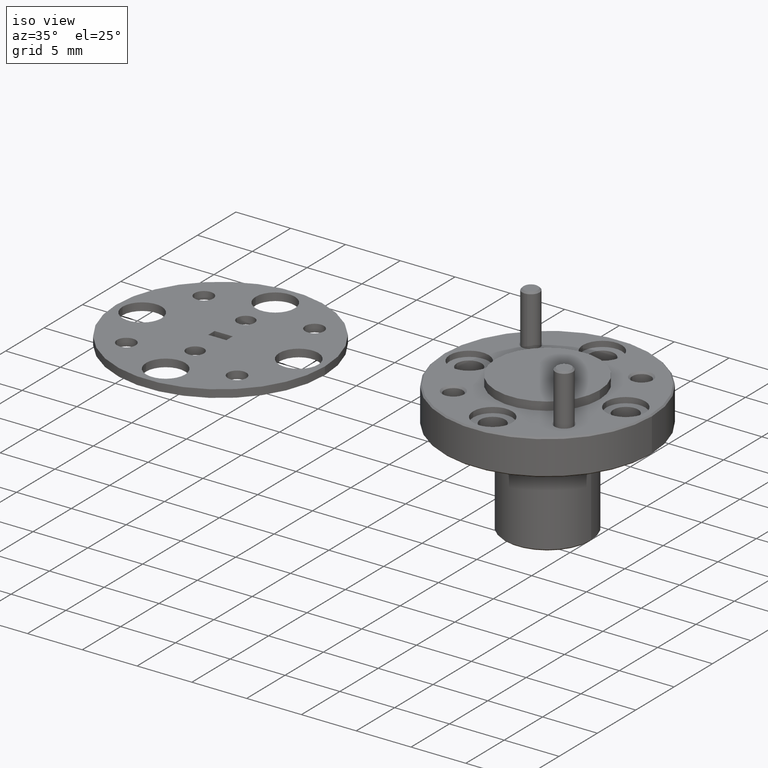
[diagram: clean part render]
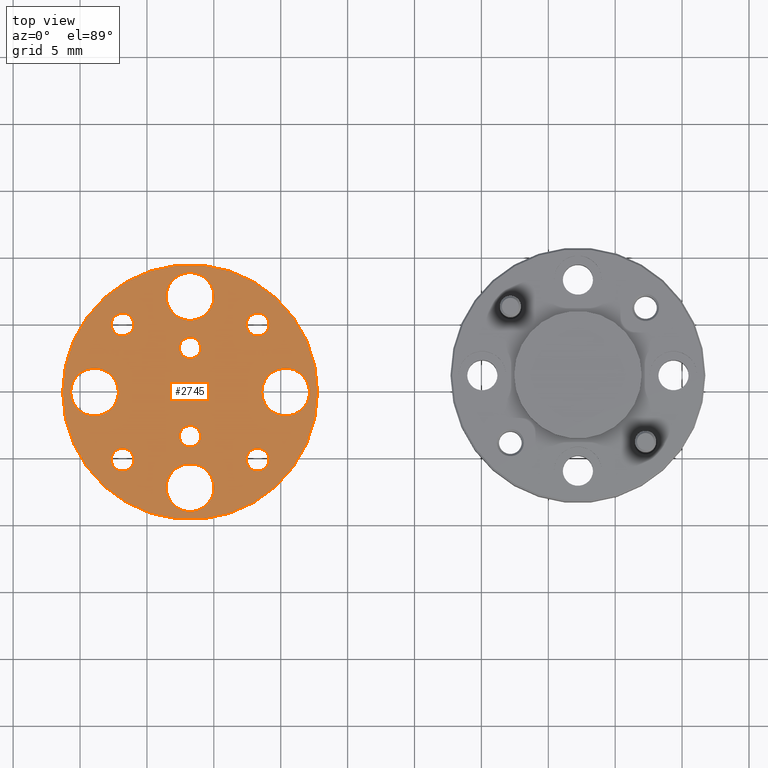
[diagram: tour spotlight — one face highlighted and labeled with its STEP entity id]
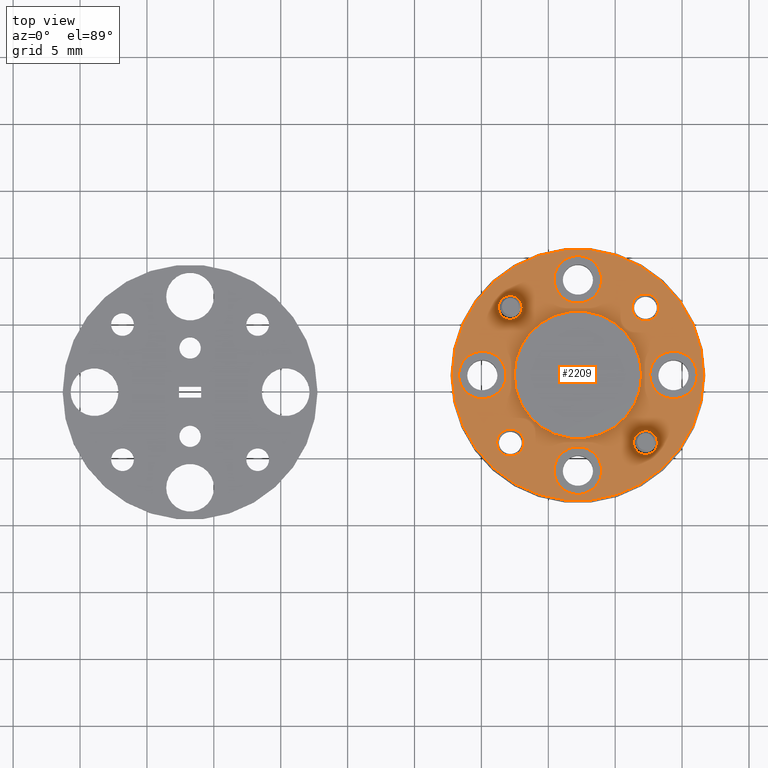
[diagram: tour spotlight — one face highlighted and labeled with its STEP entity id]
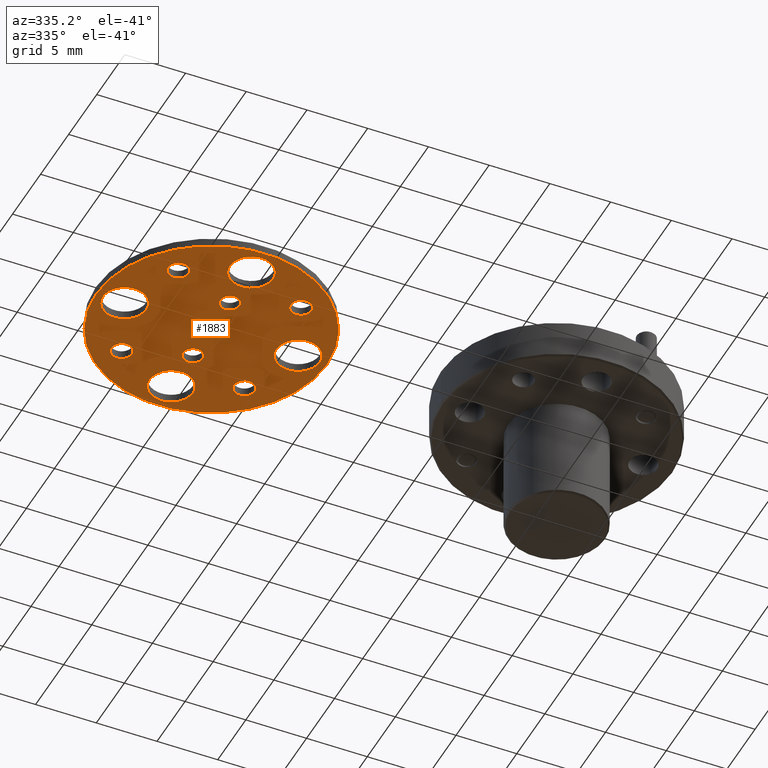
[diagram: tour spotlight — one face highlighted and labeled with its STEP entity id]
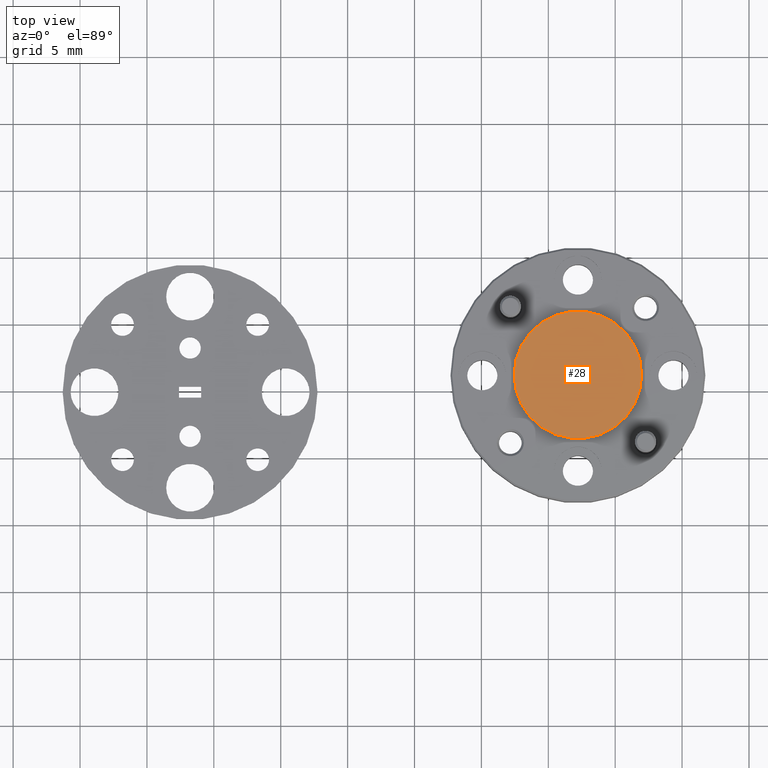
[diagram: tour spotlight — one face highlighted and labeled with its STEP entity id]
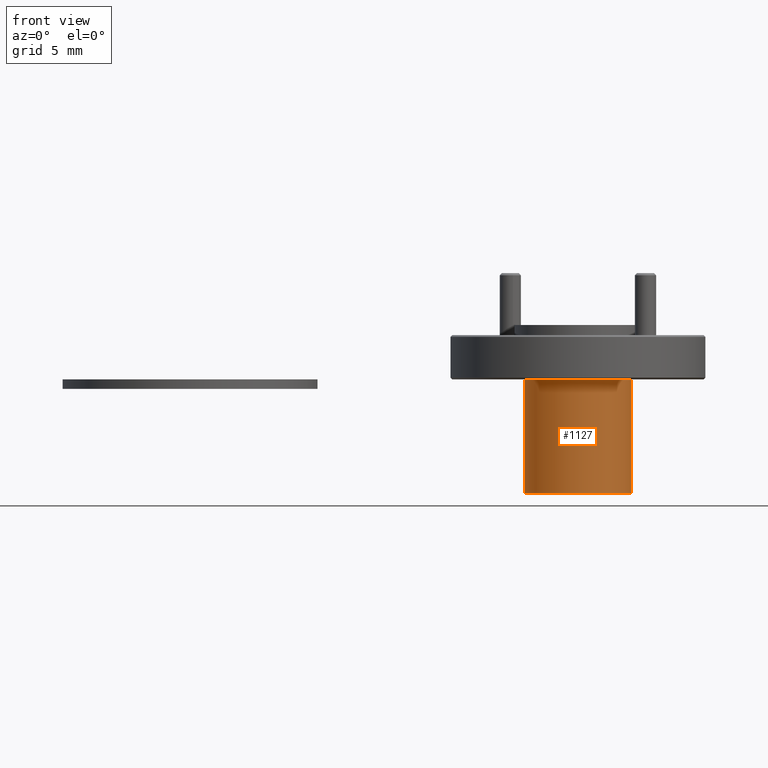
[diagram: tour spotlight — one face highlighted and labeled with its STEP entity id]
A machine part: a face-by-face anatomy tour. The part has 96 B-rep faces; the first image is the clean iso view, then the 5 largest visible faces are spotlighted one at a time (largest first), each with its STEP entity span.

Face 1 — top view, entity #2745. In plain terms, the highlighted planar face has unit normal (-0, 0, 1).
Definition (entity closure, byte-faithful):
#11 = DIRECTION ( 'NONE',  ( 1.000000000000000000, 0.0000000000000000000, 0.0000000000000000000 ) ) ;
#38 = EDGE_CURVE ( 'NONE', #2711, #427, #2895, .T. ) ;
#50 = DIRECTION ( 'NONE',  ( -6.820774115443490600E-018, 1.823564215378470600E-016, 1.000000000000000000 ) ) ;
#62 = EDGE_LOOP ( 'NONE', ( #943, #1233 ) ) ;
#70 = AXIS2_PLACEMENT_3D ( 'NONE', #2771, #2146, #2158 ) ;
#86 = CARTESIAN_POINT ( 'NONE',  ( -1.872987289043737600, 0.9754661224549325800, -0.4370940517253736900 ) ) ;
#90 = FACE_OUTER_BOUND ( 'NONE', #62, .T. ) ;
#119 = CARTESIAN_POINT ( 'NONE',  ( -2.237234853461169700, 1.373213686872366600, -0.4370940517253737400 ) ) ;
#121 = DIRECTION ( 'NONE',  ( 1.000000000000000000, 0.0000000000000000000, 0.0000000000000000000 ) ) ;
#135 = VERTEX_POINT ( 'NONE', #2904 ) ;
#138 = EDGE_CURVE ( 'NONE', #750, #2807, #1610, .T. ) ;
#165 = ORIENTED_EDGE ( 'NONE', *, *, #1144, .F. ) ;
#172 = DIRECTION ( 'NONE',  ( 1.000000000000000000, 0.0000000000000000000, 0.0000000000000000000 ) ) ;
#185 = VERTEX_POINT ( 'NONE', #2712 ) ;
#189 = EDGE_CURVE ( 'NONE', #2380, #1712, #2831, .T. ) ;
#206 = VERTEX_POINT ( 'NONE', #1573 ) ;
#215 = AXIS2_PLACEMENT_3D ( 'NONE', #1591, #1370, #1821 ) ;
#223 = CARTESIAN_POINT ( 'NONE',  ( -2.249296071252453900, 1.174339904663649300, -0.4370940517253737400 ) ) ;
#247 = CARTESIAN_POINT ( 'NONE',  ( -2.005861071252454100, 1.190589904663649400, -0.4370940517253737400 ) ) ;
#251 = CARTESIAN_POINT ( 'NONE',  ( -1.839487289043737900, 0.9754661224549325800, -0.4370940517253736900 ) ) ;
#252 = ORIENTED_EDGE ( 'NONE', *, *, #189, .T. ) ;
#294 = EDGE_LOOP ( 'NONE', ( #643, #2658 ) ) ;
#357 = AXIS2_PLACEMENT_3D ( 'NONE', #2215, #1969, #613 ) ;
#364 = DIRECTION ( 'NONE',  ( 1.000000000000000000, 0.0000000000000000000, 0.0000000000000000000 ) ) ;
#376 = AXIS2_PLACEMENT_3D ( 'NONE', #2872, #2654, #1281 ) ;
#382 = FACE_BOUND ( 'NONE', #1802, .T. ) ;
#416 = DIRECTION ( 'NONE',  ( -6.820774115443490600E-018, 1.823564215378470600E-016, 1.000000000000000000 ) ) ;
#427 = VERTEX_POINT ( 'NONE', #2405 ) ;
#432 = AXIS2_PLACEMENT_3D ( 'NONE', #1841, #2281, #11 ) ;
#486 = EDGE_LOOP ( 'NONE', ( #805, #2067 ) ) ;
#488 = CARTESIAN_POINT ( 'NONE',  ( -1.757111071252454000, 1.174339904663649300, -0.4370940517253737400 ) ) ;
#500 = VECTOR ( 'NONE', #1925, 39.37007874015748100 ) ;
#552 = VECTOR ( 'NONE', #2076, 39.37007874015748100 ) ;
#553 = FACE_BOUND ( 'NONE', #2580, .T. ) ;
#556 = VECTOR ( 'NONE', #2034, 39.37007874015748100 ) ;
#571 = DIRECTION ( 'NONE',  ( 1.000000000000000000, 0.0000000000000000000, 0.0000000000000000000 ) ) ;
#606 = CARTESIAN_POINT ( 'NONE',  ( -1.663361071252453800, 1.174339904663649300, -0.4370940517253737400 ) ) ;
#613 = DIRECTION ( 'NONE',  ( 1.000000000000000000, 0.0000000000000000000, 0.0000000000000000000 ) ) ;
#626 = CIRCLE ( 'NONE', #2668, 0.07031499999999982200 ) ;
#643 = ORIENTED_EDGE ( 'NONE', *, *, #992, .F. ) ;
#658 = CIRCLE ( 'NONE', #1136, 0.07031499999999982200 ) ;
#682 = FACE_BOUND ( 'NONE', #2311, .T. ) ;
#692 = EDGE_CURVE ( 'NONE', #1333, #2510, #658, .T. ) ;
#693 = DIRECTION ( 'NONE',  ( 1.000000000000000000, 0.0000000000000000000, 0.0000000000000000000 ) ) ;
#703 = DIRECTION ( 'NONE',  ( -6.820774115443490600E-018, 1.823564215378470600E-016, 1.000000000000000000 ) ) ;
#728 = DIRECTION ( 'NONE',  ( 1.000000000000000000, 0.0000000000000000000, 0.0000000000000000000 ) ) ;
#737 = CARTESIAN_POINT ( 'NONE',  ( -2.038361071252453800, 0.8930899046636493500, -0.4370940517253736900 ) ) ;
#747 = VERTEX_POINT ( 'NONE', #2796 ) ;
#749 = DIRECTION ( 'NONE',  ( -6.820774115443490600E-018, 1.823564215378470600E-016, 1.000000000000000000 ) ) ;
#750 = VERTEX_POINT ( 'NONE', #769 ) ;
#768 = ORIENTED_EDGE ( 'NONE', *, *, #978, .F. ) ;
#769 = CARTESIAN_POINT ( 'NONE',  ( -2.006861071252453900, 1.304339904663649500, -0.4370940517253737400 ) ) ;
#805 = ORIENTED_EDGE ( 'NONE', *, *, #2736, .F. ) ;
#806 = CARTESIAN_POINT ( 'NONE',  ( -2.038361071252453800, 1.304339904663649500, -0.4370940517253737400 ) ) ;
#812 = AXIS2_PLACEMENT_3D ( 'NONE', #1044, #2603, #121 ) ;
#819 = AXIS2_PLACEMENT_3D ( 'NONE', #1357, #886, #2696 ) ;
#871 = VERTEX_POINT ( 'NONE', #606 ) ;
#875 = AXIS2_PLACEMENT_3D ( 'NONE', #2518, #2786, #2527 ) ;
#886 = DIRECTION ( 'NONE',  ( -6.820774115443490600E-018, 1.823564215378470600E-016, 1.000000000000000000 ) ) ;
#913 = CARTESIAN_POINT ( 'NONE',  ( -1.805987289043738100, 0.9754661224549325800, -0.4370940517253736900 ) ) ;
#914 = CARTESIAN_POINT ( 'NONE',  ( -2.005861071252454100, 1.190589904663649400, -0.4370940517253737400 ) ) ;
#926 = CIRCLE ( 'NONE', #1355, 0.03349999999999979400 ) ;
#927 = CIRCLE ( 'NONE', #1060, 0.03349999999999979400 ) ;
#943 = ORIENTED_EDGE ( 'NONE', *, *, #2437, .T. ) ;
#945 = CIRCLE ( 'NONE', #1949, 0.03349999999999979400 ) ;
#978 = EDGE_CURVE ( 'NONE', #135, #747, #926, .T. ) ;
#980 = CARTESIAN_POINT ( 'NONE',  ( -2.070861071252454000, 1.158089904663649500, -0.4370940517253737400 ) ) ;
#992 = EDGE_CURVE ( 'NONE', #2505, #1982, #2715, .T. ) ;
#1000 = CIRCLE ( 'NONE', #2729, 0.03149999999999992400 ) ;
#1014 = CARTESIAN_POINT ( 'NONE',  ( -2.038361071252453800, 1.174339904663649300, -0.4370940517253737400 ) ) ;
#1016 = CARTESIAN_POINT ( 'NONE',  ( -1.805987289043737200, 1.373213686872365400, -0.4370940517253737400 ) ) ;
#1018 = CARTESIAN_POINT ( 'NONE',  ( -2.270734853461169800, 1.373213686872366600, -0.4370940517253737400 ) ) ;
#1029 = VERTEX_POINT ( 'NONE', #1064 ) ;
#1044 = CARTESIAN_POINT ( 'NONE',  ( -2.038361071252453800, 1.455589904663649600, -0.4370940517253738000 ) ) ;
#1060 = AXIS2_PLACEMENT_3D ( 'NONE', #2871, #1509, #2653 ) ;
#1064 = CARTESIAN_POINT ( 'NONE',  ( -1.872987289043736900, 1.373213686872365400, -0.4370940517253737400 ) ) ;
#1068 = DIRECTION ( 'NONE',  ( -6.820774115443490600E-018, 1.823564215378470600E-016, 1.000000000000000000 ) ) ;
#1072 = CARTESIAN_POINT ( 'NONE',  ( -2.038361071252453800, 1.304339904663649500, -0.4370940517253737400 ) ) ;
#1087 = CARTESIAN_POINT ( 'NONE',  ( -2.070861071252454000, 1.158089904663649500, -0.4370940517253737400 ) ) ;
#1092 = EDGE_LOOP ( 'NONE', ( #1316, #1142 ) ) ;
#1094 = EDGE_CURVE ( 'NONE', #1982, #2505, #2495, .T. ) ;
#1095 = EDGE_LOOP ( 'NONE', ( #1936, #252, #1303, #2670 ) ) ;
#1105 = CARTESIAN_POINT ( 'NONE',  ( -2.108676071252453700, 0.8930899046636493500, -0.4370940517253736900 ) ) ;
#1112 = AXIS2_PLACEMENT_3D ( 'NONE', #1072, #1531, #172 ) ;
#1134 = ORIENTED_EDGE ( 'NONE', *, *, #1148, .F. ) ;
#1136 = AXIS2_PLACEMENT_3D ( 'NONE', #1191, #749, #1673 ) ;
#1142 = ORIENTED_EDGE ( 'NONE', *, *, #1770, .F. ) ;
#1144 = EDGE_CURVE ( 'NONE', #2510, #1333, #1359, .T. ) ;
#1148 = EDGE_CURVE ( 'NONE', #1662, #1911, #1700, .T. ) ;
#1191 = CARTESIAN_POINT ( 'NONE',  ( -2.038361071252453800, 0.8930899046636493500, -0.4370940517253736900 ) ) ;
#1192 = LINE ( 'NONE', #980, #500 ) ;
#1200 = DIRECTION ( 'NONE',  ( 1.000000000000000000, 0.0000000000000000000, 0.0000000000000000000 ) ) ;
#1223 = ORIENTED_EDGE ( 'NONE', *, *, #2422, .F. ) ;
#1225 = DIRECTION ( 'NONE',  ( -6.820774115443490600E-018, 1.823564215378470600E-016, 1.000000000000000000 ) ) ;
#1233 = ORIENTED_EDGE ( 'NONE', *, *, #1884, .T. ) ;
#1236 = CARTESIAN_POINT ( 'NONE',  ( -1.839487289043737900, 0.9754661224549325800, -0.4370940517253736900 ) ) ;
#1247 = DIRECTION ( 'NONE',  ( -6.820774115443490600E-018, 1.823564215378470600E-016, 1.000000000000000000 ) ) ;
#1251 = EDGE_CURVE ( 'NONE', #1029, #2278, #1881, .T. ) ;
#1262 = ORIENTED_EDGE ( 'NONE', *, *, #2038, .F. ) ;
#1281 = DIRECTION ( 'NONE',  ( 1.000000000000000000, 0.0000000000000000000, 0.0000000000000000000 ) ) ;
#1290 = FACE_BOUND ( 'NONE', #2088, .T. ) ;
#1302 = CARTESIAN_POINT ( 'NONE',  ( -2.006861071252453900, 1.044339904663649500, -0.4370940517253736900 ) ) ;
#1303 = ORIENTED_EDGE ( 'NONE', *, *, #2269, .T. ) ;
#1309 = CIRCLE ( 'NONE', #2713, 0.03349999999999979400 ) ;
#1310 = EDGE_CURVE ( 'NONE', #1560, #2380, #1192, .T. ) ;
#1316 = ORIENTED_EDGE ( 'NONE', *, *, #1416, .F. ) ;
#1333 = VERTEX_POINT ( 'NONE', #2813 ) ;
#1350 = EDGE_CURVE ( 'NONE', #2522, #1394, #1309, .T. ) ;
#1352 = AXIS2_PLACEMENT_3D ( 'NONE', #2667, #2876, #1526 ) ;
#1355 = AXIS2_PLACEMENT_3D ( 'NONE', #2666, #416, #1515 ) ;
#1357 = CARTESIAN_POINT ( 'NONE',  ( -2.038361071252453800, 1.044339904663649500, -0.4370940517253736900 ) ) ;
#1359 = CIRCLE ( 'NONE', #1492, 0.07031499999999982200 ) ;
#1361 = PLANE ( 'NONE',  #215 ) ;
#1370 = DIRECTION ( 'NONE',  ( -6.820774115443490600E-018, 1.823564215378470300E-016, 1.000000000000000000 ) ) ;
#1377 = CARTESIAN_POINT ( 'NONE',  ( -1.827426071252453700, 1.174339904663649300, -0.4370940517253737400 ) ) ;
#1379 = EDGE_CURVE ( 'NONE', #1394, #2522, #945, .T. ) ;
#1394 = VERTEX_POINT ( 'NONE', #1018 ) ;
#1397 = VECTOR ( 'NONE', #1412, 39.37007874015748100 ) ;
#1403 = VERTEX_POINT ( 'NONE', #2424 ) ;
#1409 = CARTESIAN_POINT ( 'NONE',  ( -2.069861071252453700, 1.304339904663649500, -0.4370940517253737400 ) ) ;
#1412 = DIRECTION ( 'NONE',  ( -1.000000000000000000, -1.731011188924221700E-033, -6.820774115443489800E-018 ) ) ;
#1416 = EDGE_CURVE ( 'NONE', #206, #1743, #2244, .T. ) ;
#1434 = CARTESIAN_POINT ( 'NONE',  ( -2.005861071252454100, 1.158089904663649500, -0.4370940517253737400 ) ) ;
#1454 = DIRECTION ( 'NONE',  ( 1.000000000000000000, 0.0000000000000000000, 0.0000000000000000000 ) ) ;
#1467 = DIRECTION ( 'NONE',  ( -6.820774115443490600E-018, 1.823564215378470600E-016, 1.000000000000000000 ) ) ;
#1492 = AXIS2_PLACEMENT_3D ( 'NONE', #737, #2780, #728 ) ;
#1509 = DIRECTION ( 'NONE',  ( -6.820774115443490600E-018, 1.823564215378470600E-016, 1.000000000000000000 ) ) ;
#1513 = EDGE_LOOP ( 'NONE', ( #1223, #768 ) ) ;
#1515 = DIRECTION ( 'NONE',  ( 1.000000000000000000, 0.0000000000000000000, 0.0000000000000000000 ) ) ;
#1526 = DIRECTION ( 'NONE',  ( 1.000000000000000000, 0.0000000000000000000, 0.0000000000000000000 ) ) ;
#1531 = DIRECTION ( 'NONE',  ( -6.820774115443490600E-018, 1.823564215378470600E-016, 1.000000000000000000 ) ) ;
#1560 = VERTEX_POINT ( 'NONE', #1087 ) ;
#1571 = ORIENTED_EDGE ( 'NONE', *, *, #138, .F. ) ;
#1573 = CARTESIAN_POINT ( 'NONE',  ( -2.389926071252453700, 1.174339904663649300, -0.4370940517253737400 ) ) ;
#1591 = CARTESIAN_POINT ( 'NONE',  ( -2.038361071252453800, 1.549339904663649300, -0.4370940517253738000 ) ) ;
#1598 = AXIS2_PLACEMENT_3D ( 'NONE', #1014, #1247, #1454 ) ;
#1610 = CIRCLE ( 'NONE', #1112, 0.03149999999999992400 ) ;
#1613 = ORIENTED_EDGE ( 'NONE', *, *, #38, .F. ) ;
#1621 = DIRECTION ( 'NONE',  ( -6.820774115443490600E-018, 1.823564215378470600E-016, 1.000000000000000000 ) ) ;
#1628 = DIRECTION ( 'NONE',  ( 1.000000000000000000, 0.0000000000000000000, 0.0000000000000000000 ) ) ;
#1630 = AXIS2_PLACEMENT_3D ( 'NONE', #488, #703, #693 ) ;
#1639 = CIRCLE ( 'NONE', #2408, 0.3749999999999999400 ) ;
#1640 = VERTEX_POINT ( 'NONE', #1377 ) ;
#1662 = VERTEX_POINT ( 'NONE', #913 ) ;
#1673 = DIRECTION ( 'NONE',  ( 1.000000000000000000, 0.0000000000000000000, 0.0000000000000000000 ) ) ;
#1700 = CIRCLE ( 'NONE', #2554, 0.03349999999999979400 ) ;
#1712 = VERTEX_POINT ( 'NONE', #247 ) ;
#1735 = DIRECTION ( 'NONE',  ( -6.820774115443490600E-018, 1.823564215378470600E-016, 1.000000000000000000 ) ) ;
#1742 = DIRECTION ( 'NONE',  ( 1.000000000000000000, 0.0000000000000000000, 0.0000000000000000000 ) ) ;
#1743 = VERTEX_POINT ( 'NONE', #223 ) ;
#1747 = DIRECTION ( 'NONE',  ( 1.000000000000000000, 0.0000000000000000000, 0.0000000000000000000 ) ) ;
#1750 = CARTESIAN_POINT ( 'NONE',  ( -2.038361071252453800, 1.174339904663649300, -0.4370940517253737400 ) ) ;
#1758 = FACE_BOUND ( 'NONE', #2477, .T. ) ;
#1761 = CIRCLE ( 'NONE', #1352, 0.03349999999999979400 ) ;
#1770 = EDGE_CURVE ( 'NONE', #1743, #206, #2297, .T. ) ;
#1771 = CARTESIAN_POINT ( 'NONE',  ( -1.686796071252454100, 1.174339904663649300, -0.4370940517253737400 ) ) ;
#1774 = CARTESIAN_POINT ( 'NONE',  ( -2.203734853461170000, 1.373213686872366600, -0.4370940517253737400 ) ) ;
#1798 = ORIENTED_EDGE ( 'NONE', *, *, #1858, .F. ) ;
#1802 = EDGE_LOOP ( 'NONE', ( #2741, #2761 ) ) ;
#1821 = DIRECTION ( 'NONE',  ( 1.000000000000000000, 1.731011188924222100E-033, 6.820774115443490600E-018 ) ) ;
#1827 = FACE_BOUND ( 'NONE', #1513, .T. ) ;
#1836 = DIRECTION ( 'NONE',  ( 1.000000000000000000, 0.0000000000000000000, 0.0000000000000000000 ) ) ;
#1841 = CARTESIAN_POINT ( 'NONE',  ( -1.757111071252454000, 1.174339904663649300, -0.4370940517253737400 ) ) ;
#1844 = CARTESIAN_POINT ( 'NONE',  ( -2.005861071252454100, 1.158089904663649500, -0.4370940517253737400 ) ) ;
#1858 = EDGE_CURVE ( 'NONE', #1911, #1662, #2294, .T. ) ;
#1876 = EDGE_LOOP ( 'NONE', ( #1262, #1571 ) ) ;
#1881 = CIRCLE ( 'NONE', #70, 0.03349999999999979400 ) ;
#1884 = EDGE_CURVE ( 'NONE', #1403, #871, #2897, .T. ) ;
#1898 = LINE ( 'NONE', #1844, #552 ) ;
#1911 = VERTEX_POINT ( 'NONE', #86 ) ;
#1925 = DIRECTION ( 'NONE',  ( -4.871992291139733500E-034, 1.000000000000000000, -1.823564215378470300E-016 ) ) ;
#1936 = ORIENTED_EDGE ( 'NONE', *, *, #1310, .T. ) ;
#1947 = ORIENTED_EDGE ( 'NONE', *, *, #1379, .F. ) ;
#1949 = AXIS2_PLACEMENT_3D ( 'NONE', #119, #1735, #1742 ) ;
#1962 = DIRECTION ( 'NONE',  ( -6.820774115443490600E-018, 1.823564215378470600E-016, 1.000000000000000000 ) ) ;
#1969 = DIRECTION ( 'NONE',  ( -6.820774115443490600E-018, 1.823564215378470600E-016, 1.000000000000000000 ) ) ;
#1982 = VERTEX_POINT ( 'NONE', #1302 ) ;
#2001 = ORIENTED_EDGE ( 'NONE', *, *, #1350, .F. ) ;
#2022 = EDGE_CURVE ( 'NONE', #2278, #1029, #1761, .T. ) ;
#2034 = DIRECTION ( 'NONE',  ( 1.000000000000000000, 1.731011188924221700E-033, 6.820774115443489800E-018 ) ) ;
#2038 = EDGE_CURVE ( 'NONE', #2807, #750, #1000, .T. ) ;
#2063 = CARTESIAN_POINT ( 'NONE',  ( -2.108676071252453700, 1.455589904663649600, -0.4370940517253738000 ) ) ;
#2067 = ORIENTED_EDGE ( 'NONE', *, *, #2687, .F. ) ;
#2076 = DIRECTION ( 'NONE',  ( 4.871992291139733500E-034, -1.000000000000000000, 1.823564215378470300E-016 ) ) ;
#2088 = EDGE_LOOP ( 'NONE', ( #1613, #2728 ) ) ;
#2126 = VERTEX_POINT ( 'NONE', #1771 ) ;
#2146 = DIRECTION ( 'NONE',  ( -6.820774115443490600E-018, 1.823564215378470600E-016, 1.000000000000000000 ) ) ;
#2150 = EDGE_CURVE ( 'NONE', #427, #2711, #626, .T. ) ;
#2158 = DIRECTION ( 'NONE',  ( 1.000000000000000000, 0.0000000000000000000, 0.0000000000000000000 ) ) ;
#2204 = CARTESIAN_POINT ( 'NONE',  ( -2.070861071252454000, 1.190589904663649400, -0.4370940517253737400 ) ) ;
#2215 = CARTESIAN_POINT ( 'NONE',  ( -2.038361071252453800, 1.044339904663649500, -0.4370940517253736900 ) ) ;
#2235 = EDGE_CURVE ( 'NONE', #185, #1560, #2931, .T. ) ;
#2240 = CARTESIAN_POINT ( 'NONE',  ( -2.069861071252453700, 1.044339904663649500, -0.4370940517253736900 ) ) ;
#2244 = CIRCLE ( 'NONE', #376, 0.07031499999999982200 ) ;
#2264 = FACE_BOUND ( 'NONE', #1092, .T. ) ;
#2269 = EDGE_CURVE ( 'NONE', #1712, #185, #1898, .T. ) ;
#2278 = VERTEX_POINT ( 'NONE', #1016 ) ;
#2281 = DIRECTION ( 'NONE',  ( -6.820774115443490600E-018, 1.823564215378470600E-016, 1.000000000000000000 ) ) ;
#2294 = CIRCLE ( 'NONE', #2363, 0.03349999999999979400 ) ;
#2297 = CIRCLE ( 'NONE', #875, 0.07031499999999982200 ) ;
#2304 = CARTESIAN_POINT ( 'NONE',  ( -2.038361071252453800, 1.455589904663649600, -0.4370940517253738000 ) ) ;
#2311 = EDGE_LOOP ( 'NONE', ( #1798, #1134 ) ) ;
#2363 = AXIS2_PLACEMENT_3D ( 'NONE', #1236, #1225, #1200 ) ;
#2365 = FACE_BOUND ( 'NONE', #1095, .T. ) ;
#2380 = VERTEX_POINT ( 'NONE', #2204 ) ;
#2405 = CARTESIAN_POINT ( 'NONE',  ( -1.968046071252454100, 1.455589904663649600, -0.4370940517253738000 ) ) ;
#2408 = AXIS2_PLACEMENT_3D ( 'NONE', #1750, #1068, #364 ) ;
#2422 = EDGE_CURVE ( 'NONE', #747, #135, #927, .T. ) ;
#2424 = CARTESIAN_POINT ( 'NONE',  ( -2.413361071252453800, 1.174339904663649300, -0.4370940517253737400 ) ) ;
#2430 = FACE_BOUND ( 'NONE', #1876, .T. ) ;
#2434 = FACE_BOUND ( 'NONE', #486, .T. ) ;
#2437 = EDGE_CURVE ( 'NONE', #871, #1403, #1639, .T. ) ;
#2477 = EDGE_LOOP ( 'NONE', ( #1947, #2001 ) ) ;
#2495 = CIRCLE ( 'NONE', #819, 0.03149999999999992400 ) ;
#2499 = CIRCLE ( 'NONE', #432, 0.07031499999999982200 ) ;
#2505 = VERTEX_POINT ( 'NONE', #2240 ) ;
#2510 = VERTEX_POINT ( 'NONE', #1105 ) ;
#2518 = CARTESIAN_POINT ( 'NONE',  ( -2.319611071252453800, 1.174339904663649300, -0.4370940517253737400 ) ) ;
#2522 = VERTEX_POINT ( 'NONE', #1774 ) ;
#2527 = DIRECTION ( 'NONE',  ( 1.000000000000000000, 0.0000000000000000000, 0.0000000000000000000 ) ) ;
#2554 = AXIS2_PLACEMENT_3D ( 'NONE', #251, #1621, #1836 ) ;
#2570 = CIRCLE ( 'NONE', #1630, 0.07031499999999982200 ) ;
#2580 = EDGE_LOOP ( 'NONE', ( #165, #2590 ) ) ;
#2590 = ORIENTED_EDGE ( 'NONE', *, *, #692, .F. ) ;
#2603 = DIRECTION ( 'NONE',  ( -6.820774115443490600E-018, 1.823564215378470600E-016, 1.000000000000000000 ) ) ;
#2653 = DIRECTION ( 'NONE',  ( 1.000000000000000000, 0.0000000000000000000, 0.0000000000000000000 ) ) ;
#2654 = DIRECTION ( 'NONE',  ( -6.820774115443490600E-018, 1.823564215378470600E-016, 1.000000000000000000 ) ) ;
#2658 = ORIENTED_EDGE ( 'NONE', *, *, #1094, .F. ) ;
#2666 = CARTESIAN_POINT ( 'NONE',  ( -2.237234853461170600, 0.9754661224549332500, -0.4370940517253736900 ) ) ;
#2667 = CARTESIAN_POINT ( 'NONE',  ( -1.839487289043737000, 1.373213686872365400, -0.4370940517253737400 ) ) ;
#2668 = AXIS2_PLACEMENT_3D ( 'NONE', #2304, #50, #1628 ) ;
#2670 = ORIENTED_EDGE ( 'NONE', *, *, #2235, .T. ) ;
#2687 = EDGE_CURVE ( 'NONE', #2126, #1640, #2570, .T. ) ;
#2696 = DIRECTION ( 'NONE',  ( 1.000000000000000000, 0.0000000000000000000, 0.0000000000000000000 ) ) ;
#2711 = VERTEX_POINT ( 'NONE', #2063 ) ;
#2712 = CARTESIAN_POINT ( 'NONE',  ( -2.005861071252454100, 1.158089904663649500, -0.4370940517253737400 ) ) ;
#2713 = AXIS2_PLACEMENT_3D ( 'NONE', #2821, #1467, #571 ) ;
#2715 = CIRCLE ( 'NONE', #357, 0.03149999999999992400 ) ;
#2728 = ORIENTED_EDGE ( 'NONE', *, *, #2150, .F. ) ;
#2729 = AXIS2_PLACEMENT_3D ( 'NONE', #806, #1962, #1747 ) ;
#2736 = EDGE_CURVE ( 'NONE', #1640, #2126, #2499, .T. ) ;
#2741 = ORIENTED_EDGE ( 'NONE', *, *, #1251, .F. ) ;
#2745 = ADVANCED_FACE ( 'NONE', ( #2430, #2892, #2365, #1290, #2264, #553, #2434, #382, #1827, #1758, #682, #90 ), #1361, .T. ) ;
#2761 = ORIENTED_EDGE ( 'NONE', *, *, #2022, .F. ) ;
#2771 = CARTESIAN_POINT ( 'NONE',  ( -1.839487289043737000, 1.373213686872365400, -0.4370940517253737400 ) ) ;
#2780 = DIRECTION ( 'NONE',  ( -6.820774115443490600E-018, 1.823564215378470600E-016, 1.000000000000000000 ) ) ;
#2786 = DIRECTION ( 'NONE',  ( -6.820774115443490600E-018, 1.823564215378470600E-016, 1.000000000000000000 ) ) ;
#2796 = CARTESIAN_POINT ( 'NONE',  ( -2.270734853461170700, 0.9754661224549332500, -0.4370940517253736900 ) ) ;
#2807 = VERTEX_POINT ( 'NONE', #1409 ) ;
#2813 = CARTESIAN_POINT ( 'NONE',  ( -1.968046071252454100, 0.8930899046636493500, -0.4370940517253736900 ) ) ;
#2821 = CARTESIAN_POINT ( 'NONE',  ( -2.237234853461169700, 1.373213686872366600, -0.4370940517253737400 ) ) ;
#2831 = LINE ( 'NONE', #914, #556 ) ;
#2871 = CARTESIAN_POINT ( 'NONE',  ( -2.237234853461170600, 0.9754661224549332500, -0.4370940517253736900 ) ) ;
#2872 = CARTESIAN_POINT ( 'NONE',  ( -2.319611071252453800, 1.174339904663649300, -0.4370940517253737400 ) ) ;
#2876 = DIRECTION ( 'NONE',  ( -6.820774115443490600E-018, 1.823564215378470600E-016, 1.000000000000000000 ) ) ;
#2892 = FACE_BOUND ( 'NONE', #294, .T. ) ;
#2895 = CIRCLE ( 'NONE', #812, 0.07031499999999982200 ) ;
#2897 = CIRCLE ( 'NONE', #1598, 0.3749999999999999400 ) ;
#2904 = CARTESIAN_POINT ( 'NONE',  ( -2.203734853461170900, 0.9754661224549332500, -0.4370940517253736900 ) ) ;
#2931 = LINE ( 'NONE', #1434, #1397 ) ;

Face 2 — top view, entity #2209. In plain terms, the highlighted planar face has unit normal (0, 0, 1).
Definition (entity closure, byte-faithful):
#8 = ORIENTED_EDGE ( 'NONE', *, *, #2248, .F. ) ;
#18 = DIRECTION ( 'NONE',  ( 0.0000000000000000000, 0.0000000000000000000, 1.000000000000000000 ) ) ;
#19 = DIRECTION ( 'NONE',  ( -0.0000000000000000000, -0.0000000000000000000, 1.000000000000000000 ) ) ;
#24 = DIRECTION ( 'NONE',  ( 1.000000000000000000, 0.0000000000000000000, 0.0000000000000000000 ) ) ;
#58 = EDGE_CURVE ( 'NONE', #78, #1534, #594, .T. ) ;
#72 = CARTESIAN_POINT ( 'NONE',  ( -0.8970838804723675300, 1.222388916362182800, -0.3070940517253739100 ) ) ;
#78 = VERTEX_POINT ( 'NONE', #2195 ) ;
#84 = CARTESIAN_POINT ( 'NONE',  ( -1.135957662681084300, 1.023515134153466700, -0.3070940517253739100 ) ) ;
#92 = EDGE_CURVE ( 'NONE', #1685, #660, #1725, .T. ) ;
#103 = CARTESIAN_POINT ( 'NONE',  ( -0.9670838804723676000, 0.9411389163621828300, -0.3070940517253739100 ) ) ;
#130 = CIRCLE ( 'NONE', #685, 0.3700000000000003300 ) ;
#134 = VERTEX_POINT ( 'NONE', #604 ) ;
#142 = CARTESIAN_POINT ( 'NONE',  ( -0.8270838804723674700, 1.503638916362183100, -0.3070940517253739100 ) ) ;
#147 = CARTESIAN_POINT ( 'NONE',  ( -1.095957662681084500, 1.421262698570898900, -0.3070940517253739100 ) ) ;
#148 = VERTEX_POINT ( 'NONE', #1992 ) ;
#159 = DIRECTION ( 'NONE',  ( 1.000000000000000000, 0.0000000000000000000, 0.0000000000000000000 ) ) ;
#168 = ORIENTED_EDGE ( 'NONE', *, *, #1963, .F. ) ;
#200 = AXIS2_PLACEMENT_3D ( 'NONE', #2243, #2682, #2455 ) ;
#232 = FACE_BOUND ( 'NONE', #1085, .T. ) ;
#234 = EDGE_CURVE ( 'NONE', #885, #1501, #1580, .T. ) ;
#238 = CARTESIAN_POINT ( 'NONE',  ( -1.084583880472367500, 1.222388916362182800, -0.3070940517253739100 ) ) ;
#242 = VERTEX_POINT ( 'NONE', #2724 ) ;
#270 = ORIENTED_EDGE ( 'NONE', *, *, #989, .F. ) ;
#272 = CARTESIAN_POINT ( 'NONE',  ( -0.6158338804723675300, 1.222388916362182800, -0.3070940517253739100 ) ) ;
#310 = FACE_BOUND ( 'NONE', #710, .T. ) ;
#365 = ORIENTED_EDGE ( 'NONE', *, *, #2475, .F. ) ;
#381 = FACE_OUTER_BOUND ( 'NONE', #2849, .T. ) ;
#391 = ORIENTED_EDGE ( 'NONE', *, *, #632, .F. ) ;
#394 = AXIS2_PLACEMENT_3D ( 'NONE', #1875, #1618, #2800 ) ;
#398 = DIRECTION ( 'NONE',  ( 1.000000000000000000, 0.0000000000000000000, 0.0000000000000000000 ) ) ;
#417 = CIRCLE ( 'NONE', #1019, 0.06999999999999993700 ) ;
#430 = CARTESIAN_POINT ( 'NONE',  ( -0.7095838804723676500, 1.222388916362182800, -0.3070940517253739100 ) ) ;
#467 = DIRECTION ( 'NONE',  ( 0.0000000000000000000, 0.0000000000000000000, 1.000000000000000000 ) ) ;
#468 = AXIS2_PLACEMENT_3D ( 'NONE', #1523, #855, #398 ) ;
#483 = AXIS2_PLACEMENT_3D ( 'NONE', #147, #1503, #1278 ) ;
#499 = CARTESIAN_POINT ( 'NONE',  ( -1.267083880472368100, 1.222388916362182800, -0.3070940517253739100 ) ) ;
#513 = CIRCLE ( 'NONE', #200, 0.1874999999999999700 ) ;
#533 = EDGE_CURVE ( 'NONE', #1351, #1816, #863, .T. ) ;
#593 = FACE_BOUND ( 'NONE', #2069, .T. ) ;
#594 = CIRCLE ( 'NONE', #848, 0.03500000000000003800 ) ;
#600 = AXIS2_PLACEMENT_3D ( 'NONE', #2312, #942, #2145 ) ;
#604 = CARTESIAN_POINT ( 'NONE',  ( -1.055957662681084500, 1.023515134153466700, -0.3070940517253739100 ) ) ;
#632 = EDGE_CURVE ( 'NONE', #1499, #1138, #2719, .T. ) ;
#644 = EDGE_CURVE ( 'NONE', #1138, #1499, #2651, .T. ) ;
#657 = EDGE_LOOP ( 'NONE', ( #1063, #1166 ) ) ;
#659 = CIRCLE ( 'NONE', #600, 0.03500000000000003800 ) ;
#660 = VERTEX_POINT ( 'NONE', #430 ) ;
#662 = DIRECTION ( 'NONE',  ( -0.0000000000000000000, -0.0000000000000000000, 1.000000000000000000 ) ) ;
#665 = EDGE_CURVE ( 'NONE', #1816, #1351, #130, .T. ) ;
#685 = AXIS2_PLACEMENT_3D ( 'NONE', #2015, #2245, #2463 ) ;
#700 = DIRECTION ( 'NONE',  ( 1.000000000000000000, 0.0000000000000000000, 0.0000000000000000000 ) ) ;
#710 = EDGE_LOOP ( 'NONE', ( #726, #1702 ) ) ;
#714 = AXIS2_PLACEMENT_3D ( 'NONE', #884, #467, #24 ) ;
#726 = ORIENTED_EDGE ( 'NONE', *, *, #1266, .F. ) ;
#731 = VERTEX_POINT ( 'NONE', #84 ) ;
#790 = ORIENTED_EDGE ( 'NONE', *, *, #644, .F. ) ;
#797 = CARTESIAN_POINT ( 'NONE',  ( -0.6858338804723674900, 1.222388916362182800, -0.3070940517253739100 ) ) ;
#828 = FACE_BOUND ( 'NONE', #1519, .T. ) ;
#848 = AXIS2_PLACEMENT_3D ( 'NONE', #2865, #2387, #1695 ) ;
#855 = DIRECTION ( 'NONE',  ( 0.0000000000000000000, 0.0000000000000000000, 1.000000000000000000 ) ) ;
#858 = CIRCLE ( 'NONE', #2860, 0.06999999999999993700 ) ;
#863 = CIRCLE ( 'NONE', #1968, 0.3700000000000003300 ) ;
#873 = CARTESIAN_POINT ( 'NONE',  ( -0.8270838804723674700, 0.9411389163621828300, -0.3070940517253739100 ) ) ;
#880 = CARTESIAN_POINT ( 'NONE',  ( -0.6158338804723675300, 1.222388916362182800, -0.3070940517253739100 ) ) ;
#884 = CARTESIAN_POINT ( 'NONE',  ( -0.8970838804723675300, 0.9411389163621828300, -0.3070940517253739100 ) ) ;
#885 = VERTEX_POINT ( 'NONE', #103 ) ;
#899 = FACE_BOUND ( 'NONE', #2489, .T. ) ;
#910 = VERTEX_POINT ( 'NONE', #2445 ) ;
#919 = DIRECTION ( 'NONE',  ( 1.000000000000000000, 0.0000000000000000000, 0.0000000000000000000 ) ) ;
#942 = DIRECTION ( 'NONE',  ( -0.0000000000000000000, -0.0000000000000000000, 1.000000000000000000 ) ) ;
#959 = CARTESIAN_POINT ( 'NONE',  ( -0.5270838804723672100, 1.222388916362182800, -0.3070940517253739100 ) ) ;
#968 = AXIS2_PLACEMENT_3D ( 'NONE', #994, #1424, #1458 ) ;
#984 = DIRECTION ( 'NONE',  ( 1.000000000000000000, 0.0000000000000000000, 0.0000000000000000000 ) ) ;
#989 = EDGE_CURVE ( 'NONE', #660, #1685, #513, .T. ) ;
#994 = CARTESIAN_POINT ( 'NONE',  ( -0.6982100982636508800, 1.421262698570899200, -0.3070940517253739100 ) ) ;
#1010 = ORIENTED_EDGE ( 'NONE', *, *, #2565, .F. ) ;
#1019 = AXIS2_PLACEMENT_3D ( 'NONE', #1280, #2880, #159 ) ;
#1063 = ORIENTED_EDGE ( 'NONE', *, *, #1661, .F. ) ;
#1069 = DIRECTION ( 'NONE',  ( 0.0000000000000000000, 0.0000000000000000000, 1.000000000000000000 ) ) ;
#1073 = EDGE_CURVE ( 'NONE', #2739, #148, #2190, .T. ) ;
#1085 = EDGE_LOOP ( 'NONE', ( #2041, #270 ) ) ;
#1119 = DIRECTION ( 'NONE',  ( -0.0000000000000000000, -0.0000000000000000000, 1.000000000000000000 ) ) ;
#1135 = CARTESIAN_POINT ( 'NONE',  ( -0.7382100982636509200, 1.421262698570899200, -0.3070940517253739100 ) ) ;
#1138 = VERTEX_POINT ( 'NONE', #1149 ) ;
#1149 = CARTESIAN_POINT ( 'NONE',  ( -0.5458338804723675800, 1.222388916362182800, -0.3070940517253739100 ) ) ;
#1166 = ORIENTED_EDGE ( 'NONE', *, *, #1703, .F. ) ;
#1201 = ORIENTED_EDGE ( 'NONE', *, *, #2131, .F. ) ;
#1232 = AXIS2_PLACEMENT_3D ( 'NONE', #1711, #1069, #1998 ) ;
#1234 = DIRECTION ( 'NONE',  ( 0.0000000000000000000, 0.0000000000000000000, 1.000000000000000000 ) ) ;
#1261 = CIRCLE ( 'NONE', #2767, 0.03999999999999998000 ) ;
#1266 = EDGE_CURVE ( 'NONE', #148, #2739, #1773, .T. ) ;
#1278 = DIRECTION ( 'NONE',  ( 1.000000000000000000, 0.0000000000000000000, 0.0000000000000000000 ) ) ;
#1280 = CARTESIAN_POINT ( 'NONE',  ( -1.178333880472367500, 1.222388916362182800, -0.3070940517253739100 ) ) ;
#1314 = ORIENTED_EDGE ( 'NONE', *, *, #1460, .F. ) ;
#1349 = DIRECTION ( 'NONE',  ( 1.000000000000000000, 0.0000000000000000000, 0.0000000000000000000 ) ) ;
#1351 = VERTEX_POINT ( 'NONE', #959 ) ;
#1424 = DIRECTION ( 'NONE',  ( -0.0000000000000000000, -0.0000000000000000000, 1.000000000000000000 ) ) ;
#1450 = VERTEX_POINT ( 'NONE', #1957 ) ;
#1451 = AXIS2_PLACEMENT_3D ( 'NONE', #272, #2917, #2082 ) ;
#1458 = DIRECTION ( 'NONE',  ( 1.000000000000000000, 0.0000000000000000000, 0.0000000000000000000 ) ) ;
#1460 = EDGE_CURVE ( 'NONE', #2072, #2402, #2343, .T. ) ;
#1499 = VERTEX_POINT ( 'NONE', #797 ) ;
#1501 = VERTEX_POINT ( 'NONE', #873 ) ;
#1503 = DIRECTION ( 'NONE',  ( -0.0000000000000000000, -0.0000000000000000000, 1.000000000000000000 ) ) ;
#1504 = ORIENTED_EDGE ( 'NONE', *, *, #234, .F. ) ;
#1519 = EDGE_LOOP ( 'NONE', ( #1201, #1314 ) ) ;
#1523 = CARTESIAN_POINT ( 'NONE',  ( -0.8970838804723675300, 1.222388916362182800, -0.3070940517253739100 ) ) ;
#1534 = VERTEX_POINT ( 'NONE', #2212 ) ;
#1575 = CARTESIAN_POINT ( 'NONE',  ( -0.6982100982636508800, 1.421262698570899200, -0.3070940517253739100 ) ) ;
#1578 = CIRCLE ( 'NONE', #2879, 0.07000000000000007600 ) ;
#1580 = CIRCLE ( 'NONE', #714, 0.07000000000000007600 ) ;
#1594 = DIRECTION ( 'NONE',  ( -0.0000000000000000000, -0.0000000000000000000, 1.000000000000000000 ) ) ;
#1599 = ORIENTED_EDGE ( 'NONE', *, *, #58, .F. ) ;
#1616 = EDGE_LOOP ( 'NONE', ( #168, #1599 ) ) ;
#1618 = DIRECTION ( 'NONE',  ( 0.0000000000000000000, 0.0000000000000000000, 1.000000000000000000 ) ) ;
#1637 = DIRECTION ( 'NONE',  ( 1.000000000000000000, 0.0000000000000000000, 0.0000000000000000000 ) ) ;
#1650 = DIRECTION ( 'NONE',  ( 1.000000000000000000, 0.0000000000000000000, -0.0000000000000000000 ) ) ;
#1661 = EDGE_CURVE ( 'NONE', #134, #731, #2334, .T. ) ;
#1685 = VERTEX_POINT ( 'NONE', #238 ) ;
#1695 = DIRECTION ( 'NONE',  ( 1.000000000000000000, 0.0000000000000000000, 0.0000000000000000000 ) ) ;
#1702 = ORIENTED_EDGE ( 'NONE', *, *, #1073, .F. ) ;
#1703 = EDGE_CURVE ( 'NONE', #731, #134, #1261, .T. ) ;
#1711 = CARTESIAN_POINT ( 'NONE',  ( -0.8970838804723675300, 1.503638916362183100, -0.3070940517253739100 ) ) ;
#1713 = AXIS2_PLACEMENT_3D ( 'NONE', #1575, #1594, #1349 ) ;
#1725 = CIRCLE ( 'NONE', #468, 0.1874999999999999700 ) ;
#1754 = ORIENTED_EDGE ( 'NONE', *, *, #2626, .F. ) ;
#1773 = CIRCLE ( 'NONE', #968, 0.03999999999999998000 ) ;
#1804 = EDGE_CURVE ( 'NONE', #1501, #885, #1905, .T. ) ;
#1812 = DIRECTION ( 'NONE',  ( 1.000000000000000000, 0.0000000000000000000, 0.0000000000000000000 ) ) ;
#1816 = VERTEX_POINT ( 'NONE', #499 ) ;
#1853 = ORIENTED_EDGE ( 'NONE', *, *, #665, .T. ) ;
#1875 = CARTESIAN_POINT ( 'NONE',  ( -0.8970838804723675300, 0.9411389163621828300, -0.3070940517253739100 ) ) ;
#1877 = DIRECTION ( 'NONE',  ( 0.0000000000000000000, 0.0000000000000000000, 1.000000000000000000 ) ) ;
#1905 = CIRCLE ( 'NONE', #394, 0.07000000000000007600 ) ;
#1952 = CARTESIAN_POINT ( 'NONE',  ( -0.9670838804723676000, 1.503638916362183100, -0.3070940517253739100 ) ) ;
#1957 = CARTESIAN_POINT ( 'NONE',  ( -0.6632100982636506300, 1.023515134153467000, -0.3070940517253739100 ) ) ;
#1963 = EDGE_CURVE ( 'NONE', #1534, #78, #2124, .T. ) ;
#1968 = AXIS2_PLACEMENT_3D ( 'NONE', #2372, #1234, #984 ) ;
#1974 = FACE_BOUND ( 'NONE', #1616, .T. ) ;
#1987 = ORIENTED_EDGE ( 'NONE', *, *, #1804, .F. ) ;
#1992 = CARTESIAN_POINT ( 'NONE',  ( -0.6582100982636509600, 1.421262698570899200, -0.3070940517253739100 ) ) ;
#1998 = DIRECTION ( 'NONE',  ( 1.000000000000000000, 0.0000000000000000000, 0.0000000000000000000 ) ) ;
#2015 = CARTESIAN_POINT ( 'NONE',  ( -0.8970838804723675300, 1.222388916362182800, -0.3070940517253739100 ) ) ;
#2031 = CARTESIAN_POINT ( 'NONE',  ( -0.6982100982636506600, 1.023515134153467000, -0.3070940517253739100 ) ) ;
#2041 = ORIENTED_EDGE ( 'NONE', *, *, #92, .F. ) ;
#2045 = CIRCLE ( 'NONE', #2138, 0.03500000000000003800 ) ;
#2069 = EDGE_LOOP ( 'NONE', ( #790, #391 ) ) ;
#2072 = VERTEX_POINT ( 'NONE', #1952 ) ;
#2082 = DIRECTION ( 'NONE',  ( 1.000000000000000000, 0.0000000000000000000, 0.0000000000000000000 ) ) ;
#2094 = VERTEX_POINT ( 'NONE', #2901 ) ;
#2124 = CIRCLE ( 'NONE', #483, 0.03500000000000003800 ) ;
#2131 = EDGE_CURVE ( 'NONE', #2402, #2072, #1578, .T. ) ;
#2138 = AXIS2_PLACEMENT_3D ( 'NONE', #2031, #662, #2708 ) ;
#2145 = DIRECTION ( 'NONE',  ( 1.000000000000000000, 0.0000000000000000000, 0.0000000000000000000 ) ) ;
#2183 = EDGE_LOOP ( 'NONE', ( #1754, #365 ) ) ;
#2190 = CIRCLE ( 'NONE', #1713, 0.03999999999999998000 ) ;
#2195 = CARTESIAN_POINT ( 'NONE',  ( -1.130957662681084700, 1.421262698570898900, -0.3070940517253739100 ) ) ;
#2209 = ADVANCED_FACE ( 'NONE', ( #381, #2433, #2263, #593, #828, #1974, #899, #2471, #310, #232 ), #2547, .T. ) ;
#2212 = CARTESIAN_POINT ( 'NONE',  ( -1.060957662681084600, 1.421262698570898900, -0.3070940517253739100 ) ) ;
#2243 = CARTESIAN_POINT ( 'NONE',  ( -0.8970838804723675300, 1.222388916362182800, -0.3070940517253739100 ) ) ;
#2245 = DIRECTION ( 'NONE',  ( 0.0000000000000000000, 0.0000000000000000000, 1.000000000000000000 ) ) ;
#2248 = EDGE_CURVE ( 'NONE', #1450, #2094, #659, .T. ) ;
#2263 = FACE_BOUND ( 'NONE', #2743, .T. ) ;
#2287 = DIRECTION ( 'NONE',  ( 1.000000000000000000, 0.0000000000000000000, 0.0000000000000000000 ) ) ;
#2310 = AXIS2_PLACEMENT_3D ( 'NONE', #2503, #19, #919 ) ;
#2312 = CARTESIAN_POINT ( 'NONE',  ( -0.6982100982636506600, 1.023515134153467000, -0.3070940517253739100 ) ) ;
#2323 = AXIS2_PLACEMENT_3D ( 'NONE', #72, #2566, #1650 ) ;
#2329 = AXIS2_PLACEMENT_3D ( 'NONE', #880, #2688, #700 ) ;
#2334 = CIRCLE ( 'NONE', #2310, 0.03999999999999998000 ) ;
#2343 = CIRCLE ( 'NONE', #1232, 0.07000000000000007600 ) ;
#2372 = CARTESIAN_POINT ( 'NONE',  ( -0.8970838804723675300, 1.222388916362182800, -0.3070940517253739100 ) ) ;
#2387 = DIRECTION ( 'NONE',  ( -0.0000000000000000000, -0.0000000000000000000, 1.000000000000000000 ) ) ;
#2402 = VERTEX_POINT ( 'NONE', #142 ) ;
#2433 = FACE_BOUND ( 'NONE', #2183, .T. ) ;
#2445 = CARTESIAN_POINT ( 'NONE',  ( -1.108333880472367700, 1.222388916362182800, -0.3070940517253739100 ) ) ;
#2455 = DIRECTION ( 'NONE',  ( 1.000000000000000000, 0.0000000000000000000, 0.0000000000000000000 ) ) ;
#2463 = DIRECTION ( 'NONE',  ( 1.000000000000000000, 0.0000000000000000000, 0.0000000000000000000 ) ) ;
#2471 = FACE_BOUND ( 'NONE', #657, .T. ) ;
#2475 = EDGE_CURVE ( 'NONE', #242, #910, #417, .T. ) ;
#2486 = CARTESIAN_POINT ( 'NONE',  ( -1.095957662681084300, 1.023515134153466700, -0.3070940517253739100 ) ) ;
#2489 = EDGE_LOOP ( 'NONE', ( #8, #1010 ) ) ;
#2503 = CARTESIAN_POINT ( 'NONE',  ( -1.095957662681084300, 1.023515134153466700, -0.3070940517253739100 ) ) ;
#2526 = CARTESIAN_POINT ( 'NONE',  ( -1.178333880472367500, 1.222388916362182800, -0.3070940517253739100 ) ) ;
#2547 = PLANE ( 'NONE',  #2323 ) ;
#2565 = EDGE_CURVE ( 'NONE', #2094, #1450, #2045, .T. ) ;
#2566 = DIRECTION ( 'NONE',  ( 0.0000000000000000000, 0.0000000000000000000, 1.000000000000000000 ) ) ;
#2626 = EDGE_CURVE ( 'NONE', #910, #242, #858, .T. ) ;
#2651 = CIRCLE ( 'NONE', #2329, 0.07000000000000000700 ) ;
#2682 = DIRECTION ( 'NONE',  ( 0.0000000000000000000, 0.0000000000000000000, 1.000000000000000000 ) ) ;
#2688 = DIRECTION ( 'NONE',  ( 0.0000000000000000000, 0.0000000000000000000, 1.000000000000000000 ) ) ;
#2708 = DIRECTION ( 'NONE',  ( 1.000000000000000000, 0.0000000000000000000, 0.0000000000000000000 ) ) ;
#2719 = CIRCLE ( 'NONE', #1451, 0.07000000000000000700 ) ;
#2724 = CARTESIAN_POINT ( 'NONE',  ( -1.248333880472367600, 1.222388916362182800, -0.3070940517253739100 ) ) ;
#2739 = VERTEX_POINT ( 'NONE', #1135 ) ;
#2743 = EDGE_LOOP ( 'NONE', ( #1987, #1504 ) ) ;
#2759 = CARTESIAN_POINT ( 'NONE',  ( -0.8970838804723675300, 1.503638916362183100, -0.3070940517253739100 ) ) ;
#2767 = AXIS2_PLACEMENT_3D ( 'NONE', #2486, #1119, #1812 ) ;
#2800 = DIRECTION ( 'NONE',  ( 1.000000000000000000, 0.0000000000000000000, 0.0000000000000000000 ) ) ;
#2849 = EDGE_LOOP ( 'NONE', ( #1853, #2902 ) ) ;
#2860 = AXIS2_PLACEMENT_3D ( 'NONE', #2526, #18, #2287 ) ;
#2865 = CARTESIAN_POINT ( 'NONE',  ( -1.095957662681084500, 1.421262698570898900, -0.3070940517253739100 ) ) ;
#2879 = AXIS2_PLACEMENT_3D ( 'NONE', #2759, #1877, #1637 ) ;
#2880 = DIRECTION ( 'NONE',  ( 0.0000000000000000000, 0.0000000000000000000, 1.000000000000000000 ) ) ;
#2901 = CARTESIAN_POINT ( 'NONE',  ( -0.7332100982636506900, 1.023515134153467000, -0.3070940517253739100 ) ) ;
#2902 = ORIENTED_EDGE ( 'NONE', *, *, #533, .T. ) ;
#2917 = DIRECTION ( 'NONE',  ( 0.0000000000000000000, 0.0000000000000000000, 1.000000000000000000 ) ) ;

Face 3 — auxiliary view, entity #1883. In plain terms, the highlighted planar face has unit normal (0, -0, -1).
Definition (entity closure, byte-faithful):
#51 = CARTESIAN_POINT ( 'NONE',  ( -2.270734853461170200, 0.9754661224549332500, -0.4650940517253737700 ) ) ;
#53 = CIRCLE ( 'NONE', #2286, 0.03149999999999992400 ) ;
#61 = DIRECTION ( 'NONE',  ( -1.000000000000000000, 0.0000000000000000000, 0.0000000000000000000 ) ) ;
#66 = CARTESIAN_POINT ( 'NONE',  ( -1.872987289043737300, 0.9754661224549325800, -0.4650940517253737700 ) ) ;
#76 = CARTESIAN_POINT ( 'NONE',  ( -2.005861071252454100, 1.190589904663649400, -0.4650940517253737700 ) ) ;
#99 = EDGE_CURVE ( 'NONE', #112, #917, #1042, .T. ) ;
#107 = CARTESIAN_POINT ( 'NONE',  ( -2.006861071252453900, 1.044339904663649500, -0.4650940517253737700 ) ) ;
#112 = VERTEX_POINT ( 'NONE', #344 ) ;
#129 = EDGE_LOOP ( 'NONE', ( #1669, #882 ) ) ;
#139 = AXIS2_PLACEMENT_3D ( 'NONE', #1003, #1921, #2608 ) ;
#169 = LINE ( 'NONE', #2921, #597 ) ;
#180 = CARTESIAN_POINT ( 'NONE',  ( -2.038361071252453800, 1.044339904663649500, -0.4650940517253737700 ) ) ;
#184 = DIRECTION ( 'NONE',  ( 6.820774115443490600E-018, -1.823564215378470600E-016, -1.000000000000000000 ) ) ;
#186 = DIRECTION ( 'NONE',  ( -4.871992291139733500E-034, 1.000000000000000000, -1.823564215378470300E-016 ) ) ;
#187 = ORIENTED_EDGE ( 'NONE', *, *, #1284, .F. ) ;
#195 = CIRCLE ( 'NONE', #296, 0.03349999999999951600 ) ;
#198 = ORIENTED_EDGE ( 'NONE', *, *, #785, .F. ) ;
#203 = LINE ( 'NONE', #844, #2234 ) ;
#214 = EDGE_LOOP ( 'NONE', ( #2690, #1657 ) ) ;
#227 = CIRCLE ( 'NONE', #470, 0.3749999999999999400 ) ;
#258 = CARTESIAN_POINT ( 'NONE',  ( -2.249296071252454300, 1.174339904663649300, -0.4650940517253738200 ) ) ;
#269 = FACE_BOUND ( 'NONE', #395, .T. ) ;
#276 = DIRECTION ( 'NONE',  ( 6.820774115443490600E-018, -1.823564215378470600E-016, -1.000000000000000000 ) ) ;
#281 = VERTEX_POINT ( 'NONE', #1422 ) ;
#290 = CARTESIAN_POINT ( 'NONE',  ( -2.389926071252453300, 1.174339904663649300, -0.4650940517253738200 ) ) ;
#296 = AXIS2_PLACEMENT_3D ( 'NONE', #2673, #184, #1299 ) ;
#308 = DIRECTION ( 'NONE',  ( -1.000000000000000000, 0.0000000000000000000, 0.0000000000000000000 ) ) ;
#320 = VERTEX_POINT ( 'NONE', #754 ) ;
#323 = CARTESIAN_POINT ( 'NONE',  ( -1.805987289043738300, 0.9754661224549325800, -0.4650940517253737700 ) ) ;
#337 = CARTESIAN_POINT ( 'NONE',  ( -2.237234853461170600, 0.9754661224549332500, -0.4650940517253737700 ) ) ;
#344 = CARTESIAN_POINT ( 'NONE',  ( -1.872987289043736500, 1.373213686872365400, -0.4650940517253738200 ) ) ;
#349 = DIRECTION ( 'NONE',  ( -1.000000000000000000, -1.731011188924222100E-033, -6.820774115443490600E-018 ) ) ;
#359 = VERTEX_POINT ( 'NONE', #1954 ) ;
#361 = DIRECTION ( 'NONE',  ( 6.820774115443490600E-018, -1.823564215378470600E-016, -1.000000000000000000 ) ) ;
#385 = FACE_BOUND ( 'NONE', #874, .T. ) ;
#386 = DIRECTION ( 'NONE',  ( 6.820774115443490600E-018, -1.823564215378470600E-016, -1.000000000000000000 ) ) ;
#395 = EDGE_LOOP ( 'NONE', ( #1050, #2857 ) ) ;
#412 = DIRECTION ( 'NONE',  ( -1.000000000000000000, 0.0000000000000000000, 0.0000000000000000000 ) ) ;
#421 = DIRECTION ( 'NONE',  ( 6.820774115443490600E-018, -1.823564215378470600E-016, -1.000000000000000000 ) ) ;
#438 = ORIENTED_EDGE ( 'NONE', *, *, #2560, .F. ) ;
#444 = EDGE_CURVE ( 'NONE', #1163, #1479, #2432, .T. ) ;
#445 = VERTEX_POINT ( 'NONE', #1263 ) ;
#449 = AXIS2_PLACEMENT_3D ( 'NONE', #2809, #577, #349 ) ;
#458 = DIRECTION ( 'NONE',  ( 6.820774115443490600E-018, -1.823564215378470600E-016, -1.000000000000000000 ) ) ;
#459 = LINE ( 'NONE', #2238, #2290 ) ;
#470 = AXIS2_PLACEMENT_3D ( 'NONE', #1564, #2007, #2019 ) ;
#482 = CARTESIAN_POINT ( 'NONE',  ( -1.968046071252454300, 0.8930899046636493500, -0.4650940517253737700 ) ) ;
#490 = AXIS2_PLACEMENT_3D ( 'NONE', #2129, #1668, #2377 ) ;
#496 = DIRECTION ( 'NONE',  ( 6.820774115443490600E-018, -1.823564215378470600E-016, -1.000000000000000000 ) ) ;
#507 = DIRECTION ( 'NONE',  ( -1.000000000000000000, 0.0000000000000000000, 0.0000000000000000000 ) ) ;
#543 = DIRECTION ( 'NONE',  ( 1.000000000000000000, 1.731011188924221700E-033, 6.820774115443489800E-018 ) ) ;
#558 = FACE_OUTER_BOUND ( 'NONE', #2136, .T. ) ;
#577 = DIRECTION ( 'NONE',  ( 6.820774115443490600E-018, -1.823564215378470300E-016, -1.000000000000000000 ) ) ;
#581 = VERTEX_POINT ( 'NONE', #482 ) ;
#592 = CIRCLE ( 'NONE', #605, 0.03349999999999951600 ) ;
#597 = VECTOR ( 'NONE', #2451, 39.37007874015748100 ) ;
#605 = AXIS2_PLACEMENT_3D ( 'NONE', #2112, #1887, #308 ) ;
#607 = VERTEX_POINT ( 'NONE', #2251 ) ;
#610 = DIRECTION ( 'NONE',  ( 6.820774115443490600E-018, -1.823564215378470600E-016, -1.000000000000000000 ) ) ;
#616 = CARTESIAN_POINT ( 'NONE',  ( -2.038361071252453800, 1.455589904663649600, -0.4650940517253738800 ) ) ;
#646 = CARTESIAN_POINT ( 'NONE',  ( -1.663361071252453800, 1.174339904663649300, -0.4650940517253737700 ) ) ;
#650 = EDGE_CURVE ( 'NONE', #1948, #359, #1514, .T. ) ;
#667 = ORIENTED_EDGE ( 'NONE', *, *, #2302, .F. ) ;
#678 = EDGE_CURVE ( 'NONE', #917, #112, #592, .T. ) ;
#689 = VERTEX_POINT ( 'NONE', #66 ) ;
#708 = CARTESIAN_POINT ( 'NONE',  ( -1.839487289043737900, 0.9754661224549325800, -0.4650940517253737700 ) ) ;
#753 = LINE ( 'NONE', #76, #1206 ) ;
#754 = CARTESIAN_POINT ( 'NONE',  ( -2.108676071252453300, 0.8930899046636493500, -0.4650940517253737700 ) ) ;
#763 = FACE_BOUND ( 'NONE', #129, .T. ) ;
#778 = ORIENTED_EDGE ( 'NONE', *, *, #939, .F. ) ;
#782 = PLANE ( 'NONE',  #449 ) ;
#785 = EDGE_CURVE ( 'NONE', #1566, #1242, #2747, .T. ) ;
#807 = VERTEX_POINT ( 'NONE', #1437 ) ;
#818 = DIRECTION ( 'NONE',  ( -1.000000000000000000, 0.0000000000000000000, 0.0000000000000000000 ) ) ;
#844 = CARTESIAN_POINT ( 'NONE',  ( -2.005861071252454100, 1.158089904663649500, -0.4650940517253737700 ) ) ;
#867 = EDGE_CURVE ( 'NONE', #320, #581, #2043, .T. ) ;
#874 = EDGE_LOOP ( 'NONE', ( #2887, #2141 ) ) ;
#882 = ORIENTED_EDGE ( 'NONE', *, *, #2075, .F. ) ;
#917 = VERTEX_POINT ( 'NONE', #1317 ) ;
#931 = DIRECTION ( 'NONE',  ( 6.820774115443490600E-018, -1.823564215378470600E-016, -1.000000000000000000 ) ) ;
#939 = EDGE_CURVE ( 'NONE', #1479, #1163, #195, .T. ) ;
#944 = DIRECTION ( 'NONE',  ( -1.000000000000000000, 0.0000000000000000000, 0.0000000000000000000 ) ) ;
#951 = EDGE_LOOP ( 'NONE', ( #1585, #2519 ) ) ;
#956 = AXIS2_PLACEMENT_3D ( 'NONE', #337, #2619, #2818 ) ;
#985 = VERTEX_POINT ( 'NONE', #2647 ) ;
#986 = DIRECTION ( 'NONE',  ( 6.820774115443490600E-018, -1.823564215378470600E-016, -1.000000000000000000 ) ) ;
#993 = CIRCLE ( 'NONE', #1656, 0.03349999999999951600 ) ;
#999 = DIRECTION ( 'NONE',  ( 6.820774115443490600E-018, -1.823564215378470600E-016, -1.000000000000000000 ) ) ;
#1003 = CARTESIAN_POINT ( 'NONE',  ( -1.757111071252454000, 1.174339904663649300, -0.4650940517253738200 ) ) ;
#1006 = DIRECTION ( 'NONE',  ( -1.000000000000000000, 0.0000000000000000000, 0.0000000000000000000 ) ) ;
#1008 = VERTEX_POINT ( 'NONE', #646 ) ;
#1037 = AXIS2_PLACEMENT_3D ( 'NONE', #1387, #276, #507 ) ;
#1042 = CIRCLE ( 'NONE', #1420, 0.03349999999999951600 ) ;
#1043 = FACE_BOUND ( 'NONE', #951, .T. ) ;
#1050 = ORIENTED_EDGE ( 'NONE', *, *, #1784, .F. ) ;
#1052 = EDGE_CURVE ( 'NONE', #1242, #1566, #993, .T. ) ;
#1053 = CIRCLE ( 'NONE', #490, 0.03149999999999992400 ) ;
#1062 = DIRECTION ( 'NONE',  ( -1.000000000000000000, 0.0000000000000000000, 0.0000000000000000000 ) ) ;
#1089 = CARTESIAN_POINT ( 'NONE',  ( -1.839487289043737000, 1.373213686872365400, -0.4650940517253738200 ) ) ;
#1124 = CIRCLE ( 'NONE', #2108, 0.07031499999999954500 ) ;
#1131 = CARTESIAN_POINT ( 'NONE',  ( -2.237234853461169700, 1.373213686872366600, -0.4650940517253738200 ) ) ;
#1137 = CARTESIAN_POINT ( 'NONE',  ( -2.038361071252453800, 1.304339904663649500, -0.4650940517253737700 ) ) ;
#1145 = FACE_BOUND ( 'NONE', #1298, .T. ) ;
#1163 = VERTEX_POINT ( 'NONE', #51 ) ;
#1181 = CIRCLE ( 'NONE', #2048, 0.07031499999999954500 ) ;
#1189 = ORIENTED_EDGE ( 'NONE', *, *, #2606, .F. ) ;
#1206 = VECTOR ( 'NONE', #543, 39.37007874015748100 ) ;
#1214 = CIRCLE ( 'NONE', #1653, 0.07031499999999954500 ) ;
#1221 = EDGE_CURVE ( 'NONE', #1857, #281, #2382, .T. ) ;
#1239 = CARTESIAN_POINT ( 'NONE',  ( -2.319611071252453800, 1.174339904663649300, -0.4650940517253738200 ) ) ;
#1241 = EDGE_CURVE ( 'NONE', #689, #2366, #2449, .T. ) ;
#1242 = VERTEX_POINT ( 'NONE', #1878 ) ;
#1263 = CARTESIAN_POINT ( 'NONE',  ( -2.108676071252453300, 1.455589904663649600, -0.4650940517253738800 ) ) ;
#1276 = AXIS2_PLACEMENT_3D ( 'NONE', #1137, #2760, #61 ) ;
#1284 = EDGE_CURVE ( 'NONE', #281, #1857, #1053, .T. ) ;
#1297 = AXIS2_PLACEMENT_3D ( 'NONE', #2825, #2848, #2639 ) ;
#1298 = EDGE_LOOP ( 'NONE', ( #2252, #187 ) ) ;
#1299 = DIRECTION ( 'NONE',  ( -1.000000000000000000, 0.0000000000000000000, 0.0000000000000000000 ) ) ;
#1317 = CARTESIAN_POINT ( 'NONE',  ( -1.805987289043737600, 1.373213686872365400, -0.4650940517253738200 ) ) ;
#1321 = DIRECTION ( 'NONE',  ( 6.820774115443490600E-018, -1.823564215378470600E-016, -1.000000000000000000 ) ) ;
#1325 = DIRECTION ( 'NONE',  ( -1.000000000000000000, 0.0000000000000000000, 0.0000000000000000000 ) ) ;
#1353 = EDGE_LOOP ( 'NONE', ( #198, #2699 ) ) ;
#1387 = CARTESIAN_POINT ( 'NONE',  ( -1.757111071252454000, 1.174339904663649300, -0.4650940517253738200 ) ) ;
#1396 = EDGE_CURVE ( 'NONE', #445, #2614, #1124, .T. ) ;
#1400 = ORIENTED_EDGE ( 'NONE', *, *, #1522, .F. ) ;
#1420 = AXIS2_PLACEMENT_3D ( 'NONE', #1089, #386, #1062 ) ;
#1422 = CARTESIAN_POINT ( 'NONE',  ( -2.006861071252453900, 1.304339904663649500, -0.4650940517253737700 ) ) ;
#1423 = DIRECTION ( 'NONE',  ( 6.820774115443490600E-018, -1.823564215378470600E-016, -1.000000000000000000 ) ) ;
#1437 = CARTESIAN_POINT ( 'NONE',  ( -2.070861071252454000, 1.190589904663649400, -0.4650940517253737700 ) ) ;
#1438 = FACE_BOUND ( 'NONE', #1527, .T. ) ;
#1456 = DIRECTION ( 'NONE',  ( -6.820774115443490600E-018, 1.823564215378470600E-016, 1.000000000000000000 ) ) ;
#1475 = EDGE_LOOP ( 'NONE', ( #2009, #2174 ) ) ;
#1479 = VERTEX_POINT ( 'NONE', #1557 ) ;
#1514 = CIRCLE ( 'NONE', #2525, 0.03149999999999992400 ) ;
#1522 = EDGE_CURVE ( 'NONE', #607, #2830, #203, .T. ) ;
#1527 = EDGE_LOOP ( 'NONE', ( #2211, #1729, #1400, #2006 ) ) ;
#1538 = DIRECTION ( 'NONE',  ( 4.871992291139733500E-034, -1.000000000000000000, 1.823564215378470300E-016 ) ) ;
#1541 = EDGE_CURVE ( 'NONE', #2830, #985, #169, .T. ) ;
#1543 = AXIS2_PLACEMENT_3D ( 'NONE', #2335, #1423, #2536 ) ;
#1549 = FACE_BOUND ( 'NONE', #1873, .T. ) ;
#1556 = DIRECTION ( 'NONE',  ( 6.820774115443490600E-018, -1.823564215378470600E-016, -1.000000000000000000 ) ) ;
#1557 = CARTESIAN_POINT ( 'NONE',  ( -2.203734853461171400, 0.9754661224549332500, -0.4650940517253737700 ) ) ;
#1564 = CARTESIAN_POINT ( 'NONE',  ( -2.038361071252453800, 1.174339904663649300, -0.4650940517253737700 ) ) ;
#1566 = VERTEX_POINT ( 'NONE', #2692 ) ;
#1570 = EDGE_CURVE ( 'NONE', #581, #320, #1181, .T. ) ;
#1585 = ORIENTED_EDGE ( 'NONE', *, *, #99, .F. ) ;
#1617 = CARTESIAN_POINT ( 'NONE',  ( -2.413361071252453800, 1.174339904663649300, -0.4650940517253737700 ) ) ;
#1647 = FACE_BOUND ( 'NONE', #1475, .T. ) ;
#1653 = AXIS2_PLACEMENT_3D ( 'NONE', #2598, #361, #2381 ) ;
#1656 = AXIS2_PLACEMENT_3D ( 'NONE', #1131, #458, #1325 ) ;
#1657 = ORIENTED_EDGE ( 'NONE', *, *, #1570, .F. ) ;
#1668 = DIRECTION ( 'NONE',  ( 6.820774115443490600E-018, -1.823564215378470600E-016, -1.000000000000000000 ) ) ;
#1669 = ORIENTED_EDGE ( 'NONE', *, *, #1396, .F. ) ;
#1699 = CARTESIAN_POINT ( 'NONE',  ( -2.069861071252453700, 1.304339904663649500, -0.4650940517253737700 ) ) ;
#1701 = DIRECTION ( 'NONE',  ( 1.000000000000000000, 0.0000000000000000000, 0.0000000000000000000 ) ) ;
#1729 = ORIENTED_EDGE ( 'NONE', *, *, #1541, .F. ) ;
#1782 = DIRECTION ( 'NONE',  ( -1.000000000000000000, 0.0000000000000000000, 0.0000000000000000000 ) ) ;
#1784 = EDGE_CURVE ( 'NONE', #1996, #2937, #1943, .T. ) ;
#1842 = EDGE_CURVE ( 'NONE', #2239, #2270, #1214, .T. ) ;
#1852 = AXIS2_PLACEMENT_3D ( 'NONE', #708, #931, #2537 ) ;
#1857 = VERTEX_POINT ( 'NONE', #1699 ) ;
#1873 = EDGE_LOOP ( 'NONE', ( #1189, #2697 ) ) ;
#1878 = CARTESIAN_POINT ( 'NONE',  ( -2.203734853461170500, 1.373213686872366600, -0.4650940517253738200 ) ) ;
#1880 = EDGE_CURVE ( 'NONE', #2937, #1996, #2202, .T. ) ;
#1883 = ADVANCED_FACE ( 'NONE', ( #1145, #1549, #1438, #763, #1647, #2266, #269, #1043, #2657, #2726, #385, #558 ), #782, .T. ) ;
#1887 = DIRECTION ( 'NONE',  ( 6.820774115443490600E-018, -1.823564215378470600E-016, -1.000000000000000000 ) ) ;
#1889 = CARTESIAN_POINT ( 'NONE',  ( -2.005861071252454100, 1.158089904663649500, -0.4650940517253737700 ) ) ;
#1893 = CARTESIAN_POINT ( 'NONE',  ( -2.038361071252453800, 1.174339904663649300, -0.4650940517253737700 ) ) ;
#1921 = DIRECTION ( 'NONE',  ( 6.820774115443490600E-018, -1.823564215378470600E-016, -1.000000000000000000 ) ) ;
#1943 = CIRCLE ( 'NONE', #1037, 0.07031499999999954500 ) ;
#1948 = VERTEX_POINT ( 'NONE', #107 ) ;
#1954 = CARTESIAN_POINT ( 'NONE',  ( -2.069861071252453700, 1.044339904663649500, -0.4650940517253737700 ) ) ;
#1996 = VERTEX_POINT ( 'NONE', #2401 ) ;
#2006 = ORIENTED_EDGE ( 'NONE', *, *, #2905, .F. ) ;
#2007 = DIRECTION ( 'NONE',  ( -6.820774115443490600E-018, 1.823564215378470600E-016, 1.000000000000000000 ) ) ;
#2009 = ORIENTED_EDGE ( 'NONE', *, *, #2280, .F. ) ;
#2019 = DIRECTION ( 'NONE',  ( 1.000000000000000000, 0.0000000000000000000, 0.0000000000000000000 ) ) ;
#2043 = CIRCLE ( 'NONE', #2085, 0.07031499999999954500 ) ;
#2047 = CIRCLE ( 'NONE', #2061, 0.07031499999999954500 ) ;
#2048 = AXIS2_PLACEMENT_3D ( 'NONE', #2228, #1321, #1782 ) ;
#2061 = AXIS2_PLACEMENT_3D ( 'NONE', #1239, #986, #1006 ) ;
#2066 = EDGE_LOOP ( 'NONE', ( #2132, #778 ) ) ;
#2075 = EDGE_CURVE ( 'NONE', #2614, #445, #2689, .T. ) ;
#2085 = AXIS2_PLACEMENT_3D ( 'NONE', #2196, #999, #818 ) ;
#2093 = CARTESIAN_POINT ( 'NONE',  ( -2.038361071252453800, 1.044339904663649500, -0.4650940517253737700 ) ) ;
#2098 = EDGE_CURVE ( 'NONE', #985, #807, #459, .T. ) ;
#2108 = AXIS2_PLACEMENT_3D ( 'NONE', #2386, #610, #2845 ) ;
#2112 = CARTESIAN_POINT ( 'NONE',  ( -1.839487289043737000, 1.373213686872365400, -0.4650940517253738200 ) ) ;
#2129 = CARTESIAN_POINT ( 'NONE',  ( -2.038361071252453800, 1.304339904663649500, -0.4650940517253737700 ) ) ;
#2132 = ORIENTED_EDGE ( 'NONE', *, *, #444, .F. ) ;
#2136 = EDGE_LOOP ( 'NONE', ( #667, #438 ) ) ;
#2141 = ORIENTED_EDGE ( 'NONE', *, *, #2192, .F. ) ;
#2174 = ORIENTED_EDGE ( 'NONE', *, *, #1842, .F. ) ;
#2180 = AXIS2_PLACEMENT_3D ( 'NONE', #616, #421, #2447 ) ;
#2192 = EDGE_CURVE ( 'NONE', #2366, #689, #2867, .T. ) ;
#2196 = CARTESIAN_POINT ( 'NONE',  ( -2.038361071252453800, 0.8930899046636493500, -0.4650940517253737700 ) ) ;
#2202 = CIRCLE ( 'NONE', #139, 0.07031499999999954500 ) ;
#2211 = ORIENTED_EDGE ( 'NONE', *, *, #2098, .F. ) ;
#2218 = AXIS2_PLACEMENT_3D ( 'NONE', #1893, #1456, #1701 ) ;
#2228 = CARTESIAN_POINT ( 'NONE',  ( -2.038361071252453800, 0.8930899046636493500, -0.4650940517253737700 ) ) ;
#2234 = VECTOR ( 'NONE', #1538, 39.37007874015748100 ) ;
#2238 = CARTESIAN_POINT ( 'NONE',  ( -2.070861071252454000, 1.158089904663649500, -0.4650940517253737700 ) ) ;
#2239 = VERTEX_POINT ( 'NONE', #258 ) ;
#2251 = CARTESIAN_POINT ( 'NONE',  ( -2.005861071252454100, 1.190589904663649400, -0.4650940517253737700 ) ) ;
#2252 = ORIENTED_EDGE ( 'NONE', *, *, #1221, .F. ) ;
#2266 = FACE_BOUND ( 'NONE', #214, .T. ) ;
#2270 = VERTEX_POINT ( 'NONE', #290 ) ;
#2280 = EDGE_CURVE ( 'NONE', #2270, #2239, #2047, .T. ) ;
#2286 = AXIS2_PLACEMENT_3D ( 'NONE', #180, #1556, #412 ) ;
#2290 = VECTOR ( 'NONE', #186, 39.37007874015748100 ) ;
#2302 = EDGE_CURVE ( 'NONE', #1008, #2695, #2364, .T. ) ;
#2335 = CARTESIAN_POINT ( 'NONE',  ( -1.839487289043737900, 0.9754661224549325800, -0.4650940517253737700 ) ) ;
#2364 = CIRCLE ( 'NONE', #2218, 0.3749999999999999400 ) ;
#2366 = VERTEX_POINT ( 'NONE', #323 ) ;
#2377 = DIRECTION ( 'NONE',  ( -1.000000000000000000, 0.0000000000000000000, 0.0000000000000000000 ) ) ;
#2381 = DIRECTION ( 'NONE',  ( -1.000000000000000000, 0.0000000000000000000, 0.0000000000000000000 ) ) ;
#2382 = CIRCLE ( 'NONE', #1276, 0.03149999999999992400 ) ;
#2386 = CARTESIAN_POINT ( 'NONE',  ( -2.038361071252453800, 1.455589904663649600, -0.4650940517253738800 ) ) ;
#2401 = CARTESIAN_POINT ( 'NONE',  ( -1.827426071252453500, 1.174339904663649300, -0.4650940517253738200 ) ) ;
#2432 = CIRCLE ( 'NONE', #956, 0.03349999999999951600 ) ;
#2447 = DIRECTION ( 'NONE',  ( -1.000000000000000000, 0.0000000000000000000, 0.0000000000000000000 ) ) ;
#2449 = CIRCLE ( 'NONE', #1852, 0.03349999999999951600 ) ;
#2451 = DIRECTION ( 'NONE',  ( -1.000000000000000000, -1.731011188924221700E-033, -6.820774115443489800E-018 ) ) ;
#2519 = ORIENTED_EDGE ( 'NONE', *, *, #678, .F. ) ;
#2525 = AXIS2_PLACEMENT_3D ( 'NONE', #2093, #496, #944 ) ;
#2536 = DIRECTION ( 'NONE',  ( -1.000000000000000000, 0.0000000000000000000, 0.0000000000000000000 ) ) ;
#2537 = DIRECTION ( 'NONE',  ( -1.000000000000000000, 0.0000000000000000000, 0.0000000000000000000 ) ) ;
#2560 = EDGE_CURVE ( 'NONE', #2695, #1008, #227, .T. ) ;
#2598 = CARTESIAN_POINT ( 'NONE',  ( -2.319611071252453800, 1.174339904663649300, -0.4650940517253738200 ) ) ;
#2606 = EDGE_CURVE ( 'NONE', #359, #1948, #53, .T. ) ;
#2607 = CARTESIAN_POINT ( 'NONE',  ( -1.686796071252454300, 1.174339904663649300, -0.4650940517253738200 ) ) ;
#2608 = DIRECTION ( 'NONE',  ( -1.000000000000000000, 0.0000000000000000000, 0.0000000000000000000 ) ) ;
#2614 = VERTEX_POINT ( 'NONE', #2717 ) ;
#2619 = DIRECTION ( 'NONE',  ( 6.820774115443490600E-018, -1.823564215378470600E-016, -1.000000000000000000 ) ) ;
#2639 = DIRECTION ( 'NONE',  ( -1.000000000000000000, 0.0000000000000000000, 0.0000000000000000000 ) ) ;
#2647 = CARTESIAN_POINT ( 'NONE',  ( -2.070861071252454000, 1.158089904663649500, -0.4650940517253737700 ) ) ;
#2657 = FACE_BOUND ( 'NONE', #2066, .T. ) ;
#2673 = CARTESIAN_POINT ( 'NONE',  ( -2.237234853461170600, 0.9754661224549332500, -0.4650940517253737700 ) ) ;
#2689 = CIRCLE ( 'NONE', #2180, 0.07031499999999954500 ) ;
#2690 = ORIENTED_EDGE ( 'NONE', *, *, #867, .F. ) ;
#2692 = CARTESIAN_POINT ( 'NONE',  ( -2.270734853461169300, 1.373213686872366600, -0.4650940517253738200 ) ) ;
#2695 = VERTEX_POINT ( 'NONE', #1617 ) ;
#2697 = ORIENTED_EDGE ( 'NONE', *, *, #650, .F. ) ;
#2699 = ORIENTED_EDGE ( 'NONE', *, *, #1052, .F. ) ;
#2717 = CARTESIAN_POINT ( 'NONE',  ( -1.968046071252454300, 1.455589904663649600, -0.4650940517253738800 ) ) ;
#2726 = FACE_BOUND ( 'NONE', #1353, .T. ) ;
#2747 = CIRCLE ( 'NONE', #1297, 0.03349999999999951600 ) ;
#2760 = DIRECTION ( 'NONE',  ( 6.820774115443490600E-018, -1.823564215378470600E-016, -1.000000000000000000 ) ) ;
#2809 = CARTESIAN_POINT ( 'NONE',  ( -2.038361071252453800, 1.174339904663649300, -0.4650940517253737700 ) ) ;
#2818 = DIRECTION ( 'NONE',  ( -1.000000000000000000, 0.0000000000000000000, 0.0000000000000000000 ) ) ;
#2825 = CARTESIAN_POINT ( 'NONE',  ( -2.237234853461169700, 1.373213686872366600, -0.4650940517253738200 ) ) ;
#2830 = VERTEX_POINT ( 'NONE', #1889 ) ;
#2845 = DIRECTION ( 'NONE',  ( -1.000000000000000000, 0.0000000000000000000, 0.0000000000000000000 ) ) ;
#2848 = DIRECTION ( 'NONE',  ( 6.820774115443490600E-018, -1.823564215378470600E-016, -1.000000000000000000 ) ) ;
#2857 = ORIENTED_EDGE ( 'NONE', *, *, #1880, .F. ) ;
#2867 = CIRCLE ( 'NONE', #1543, 0.03349999999999951600 ) ;
#2887 = ORIENTED_EDGE ( 'NONE', *, *, #1241, .F. ) ;
#2905 = EDGE_CURVE ( 'NONE', #807, #607, #753, .T. ) ;
#2921 = CARTESIAN_POINT ( 'NONE',  ( -2.005861071252454100, 1.158089904663649500, -0.4650940517253737700 ) ) ;
#2937 = VERTEX_POINT ( 'NONE', #2607 ) ;

Face 4 — top view, entity #28. In plain terms, the highlighted planar face has unit normal (0, 0, 1).
Definition (entity closure, byte-faithful):
#28 = ADVANCED_FACE ( 'NONE', ( #2898 ), #73, .T. ) ;
#73 = PLANE ( 'NONE',  #2855 ) ;
#217 = EDGE_LOOP ( 'NONE', ( #2638, #1146 ) ) ;
#224 = EDGE_CURVE ( 'NONE', #1805, #574, #1517, .T. ) ;
#250 = AXIS2_PLACEMENT_3D ( 'NONE', #1364, #1374, #1121 ) ;
#574 = VERTEX_POINT ( 'NONE', #879 ) ;
#618 = DIRECTION ( 'NONE',  ( 1.000000000000000000, 0.0000000000000000000, 0.0000000000000000000 ) ) ;
#808 = DIRECTION ( 'NONE',  ( 0.0000000000000000000, 0.0000000000000000000, 1.000000000000000000 ) ) ;
#879 = CARTESIAN_POINT ( 'NONE',  ( -0.7095838804723676500, 1.222388916362182800, -0.2770940517253738800 ) ) ;
#1121 = DIRECTION ( 'NONE',  ( 1.000000000000000000, 0.0000000000000000000, 0.0000000000000000000 ) ) ;
#1146 = ORIENTED_EDGE ( 'NONE', *, *, #1445, .T. ) ;
#1170 = CARTESIAN_POINT ( 'NONE',  ( -1.084583880472367500, 1.222388916362182800, -0.2770940517253738800 ) ) ;
#1364 = CARTESIAN_POINT ( 'NONE',  ( -0.8970838804723675300, 1.222388916362182800, -0.2770940517253738800 ) ) ;
#1374 = DIRECTION ( 'NONE',  ( 0.0000000000000000000, 0.0000000000000000000, 1.000000000000000000 ) ) ;
#1430 = AXIS2_PLACEMENT_3D ( 'NONE', #1976, #808, #618 ) ;
#1445 = EDGE_CURVE ( 'NONE', #574, #1805, #1808, .T. ) ;
#1517 = CIRCLE ( 'NONE', #250, 0.1874999999999999700 ) ;
#1805 = VERTEX_POINT ( 'NONE', #1170 ) ;
#1808 = CIRCLE ( 'NONE', #1430, 0.1874999999999999700 ) ;
#1976 = CARTESIAN_POINT ( 'NONE',  ( -0.8970838804723675300, 1.222388916362182800, -0.2770940517253738800 ) ) ;
#2592 = DIRECTION ( 'NONE',  ( 0.0000000000000000000, 0.0000000000000000000, 1.000000000000000000 ) ) ;
#2638 = ORIENTED_EDGE ( 'NONE', *, *, #224, .T. ) ;
#2814 = CARTESIAN_POINT ( 'NONE',  ( -0.8970838804723675300, 1.222388916362182800, -0.2770940517253738800 ) ) ;
#2824 = DIRECTION ( 'NONE',  ( 1.000000000000000000, 0.0000000000000000000, -0.0000000000000000000 ) ) ;
#2855 = AXIS2_PLACEMENT_3D ( 'NONE', #2814, #2592, #2824 ) ;
#2898 = FACE_OUTER_BOUND ( 'NONE', #217, .T. ) ;

Face 5 — front view, entity #1127. In plain terms, the highlighted cylindrical surface (partial cylindrical patch) has radius 3.9751 mm, axis along (-0, -0, 1).
Definition (entity closure, byte-faithful):
#79 = EDGE_CURVE ( 'NONE', #1151, #1306, #2725, .T. ) ;
#111 = DIRECTION ( 'NONE',  ( -0.0000000000000000000, -0.0000000000000000000, 1.000000000000000000 ) ) ;
#179 = CYLINDRICAL_SURFACE ( 'NONE', #2827, 0.1564999999999999400 ) ;
#345 = EDGE_CURVE ( 'NONE', #1306, #642, #2655, .T. ) ;
#356 = CARTESIAN_POINT ( 'NONE',  ( -0.7405838804723676700, 1.222388916362182800, -0.7770940517253738200 ) ) ;
#387 = EDGE_LOOP ( 'NONE', ( #2225, #1425, #1588, #1408 ) ) ;
#478 = EDGE_CURVE ( 'NONE', #686, #1151, #1794, .T. ) ;
#520 = CARTESIAN_POINT ( 'NONE',  ( -0.7405838804723676700, 1.222388916362182800, -0.7720940517253736000 ) ) ;
#529 = DIRECTION ( 'NONE',  ( 1.000000000000000000, 0.0000000000000000000, 0.0000000000000000000 ) ) ;
#642 = VERTEX_POINT ( 'NONE', #1839 ) ;
#686 = VERTEX_POINT ( 'NONE', #1180 ) ;
#727 = LINE ( 'NONE', #1833, #2409 ) ;
#752 = AXIS2_PLACEMENT_3D ( 'NONE', #2810, #1691, #529 ) ;
#877 = FACE_OUTER_BOUND ( 'NONE', #387, .T. ) ;
#1127 = ADVANCED_FACE ( 'NONE', ( #877 ), #179, .T. ) ;
#1151 = VERTEX_POINT ( 'NONE', #520 ) ;
#1180 = CARTESIAN_POINT ( 'NONE',  ( -1.053583880472367600, 1.222388916362182800, -0.7720940517253736000 ) ) ;
#1222 = DIRECTION ( 'NONE',  ( -1.000000000000000000, 0.0000000000000000000, 0.0000000000000000000 ) ) ;
#1306 = VERTEX_POINT ( 'NONE', #1915 ) ;
#1408 = ORIENTED_EDGE ( 'NONE', *, *, #345, .T. ) ;
#1425 = ORIENTED_EDGE ( 'NONE', *, *, #478, .T. ) ;
#1483 = DIRECTION ( 'NONE',  ( 0.0000000000000000000, 0.0000000000000000000, 1.000000000000000000 ) ) ;
#1588 = ORIENTED_EDGE ( 'NONE', *, *, #79, .T. ) ;
#1649 = EDGE_CURVE ( 'NONE', #686, #642, #727, .T. ) ;
#1691 = DIRECTION ( 'NONE',  ( -0.0000000000000000000, -0.0000000000000000000, -1.000000000000000000 ) ) ;
#1794 = CIRCLE ( 'NONE', #1823, 0.1564999999999999400 ) ;
#1823 = AXIS2_PLACEMENT_3D ( 'NONE', #2356, #1483, #1222 ) ;
#1833 = CARTESIAN_POINT ( 'NONE',  ( -1.053583880472367600, 1.222388916362182800, -0.7770940517253738200 ) ) ;
#1839 = CARTESIAN_POINT ( 'NONE',  ( -1.053583880472367600, 1.222388916362182800, -0.4370940517253738600 ) ) ;
#1915 = CARTESIAN_POINT ( 'NONE',  ( -0.7405838804723676700, 1.222388916362182800, -0.4370940517253738600 ) ) ;
#2225 = ORIENTED_EDGE ( 'NONE', *, *, #1649, .F. ) ;
#2250 = CARTESIAN_POINT ( 'NONE',  ( -0.8970838804723675300, 1.222388916362182800, -0.7770940517253738200 ) ) ;
#2356 = CARTESIAN_POINT ( 'NONE',  ( -0.8970838804723675300, 1.222388916362182800, -0.7720940517253736000 ) ) ;
#2409 = VECTOR ( 'NONE', #2738, 39.37007874015748100 ) ;
#2462 = DIRECTION ( 'NONE',  ( -0.0000000000000000000, -0.0000000000000000000, 1.000000000000000000 ) ) ;
#2473 = DIRECTION ( 'NONE',  ( 1.000000000000000000, 0.0000000000000000000, 0.0000000000000000000 ) ) ;
#2655 = CIRCLE ( 'NONE', #752, 0.1564999999999999400 ) ;
#2725 = LINE ( 'NONE', #356, #2932 ) ;
#2738 = DIRECTION ( 'NONE',  ( -0.0000000000000000000, -0.0000000000000000000, 1.000000000000000000 ) ) ;
#2810 = CARTESIAN_POINT ( 'NONE',  ( -0.8970838804723675300, 1.222388916362182800, -0.4370940517253738600 ) ) ;
#2827 = AXIS2_PLACEMENT_3D ( 'NONE', #2250, #2462, #2473 ) ;
#2932 = VECTOR ( 'NONE', #111, 39.37007874015748100 ) ;